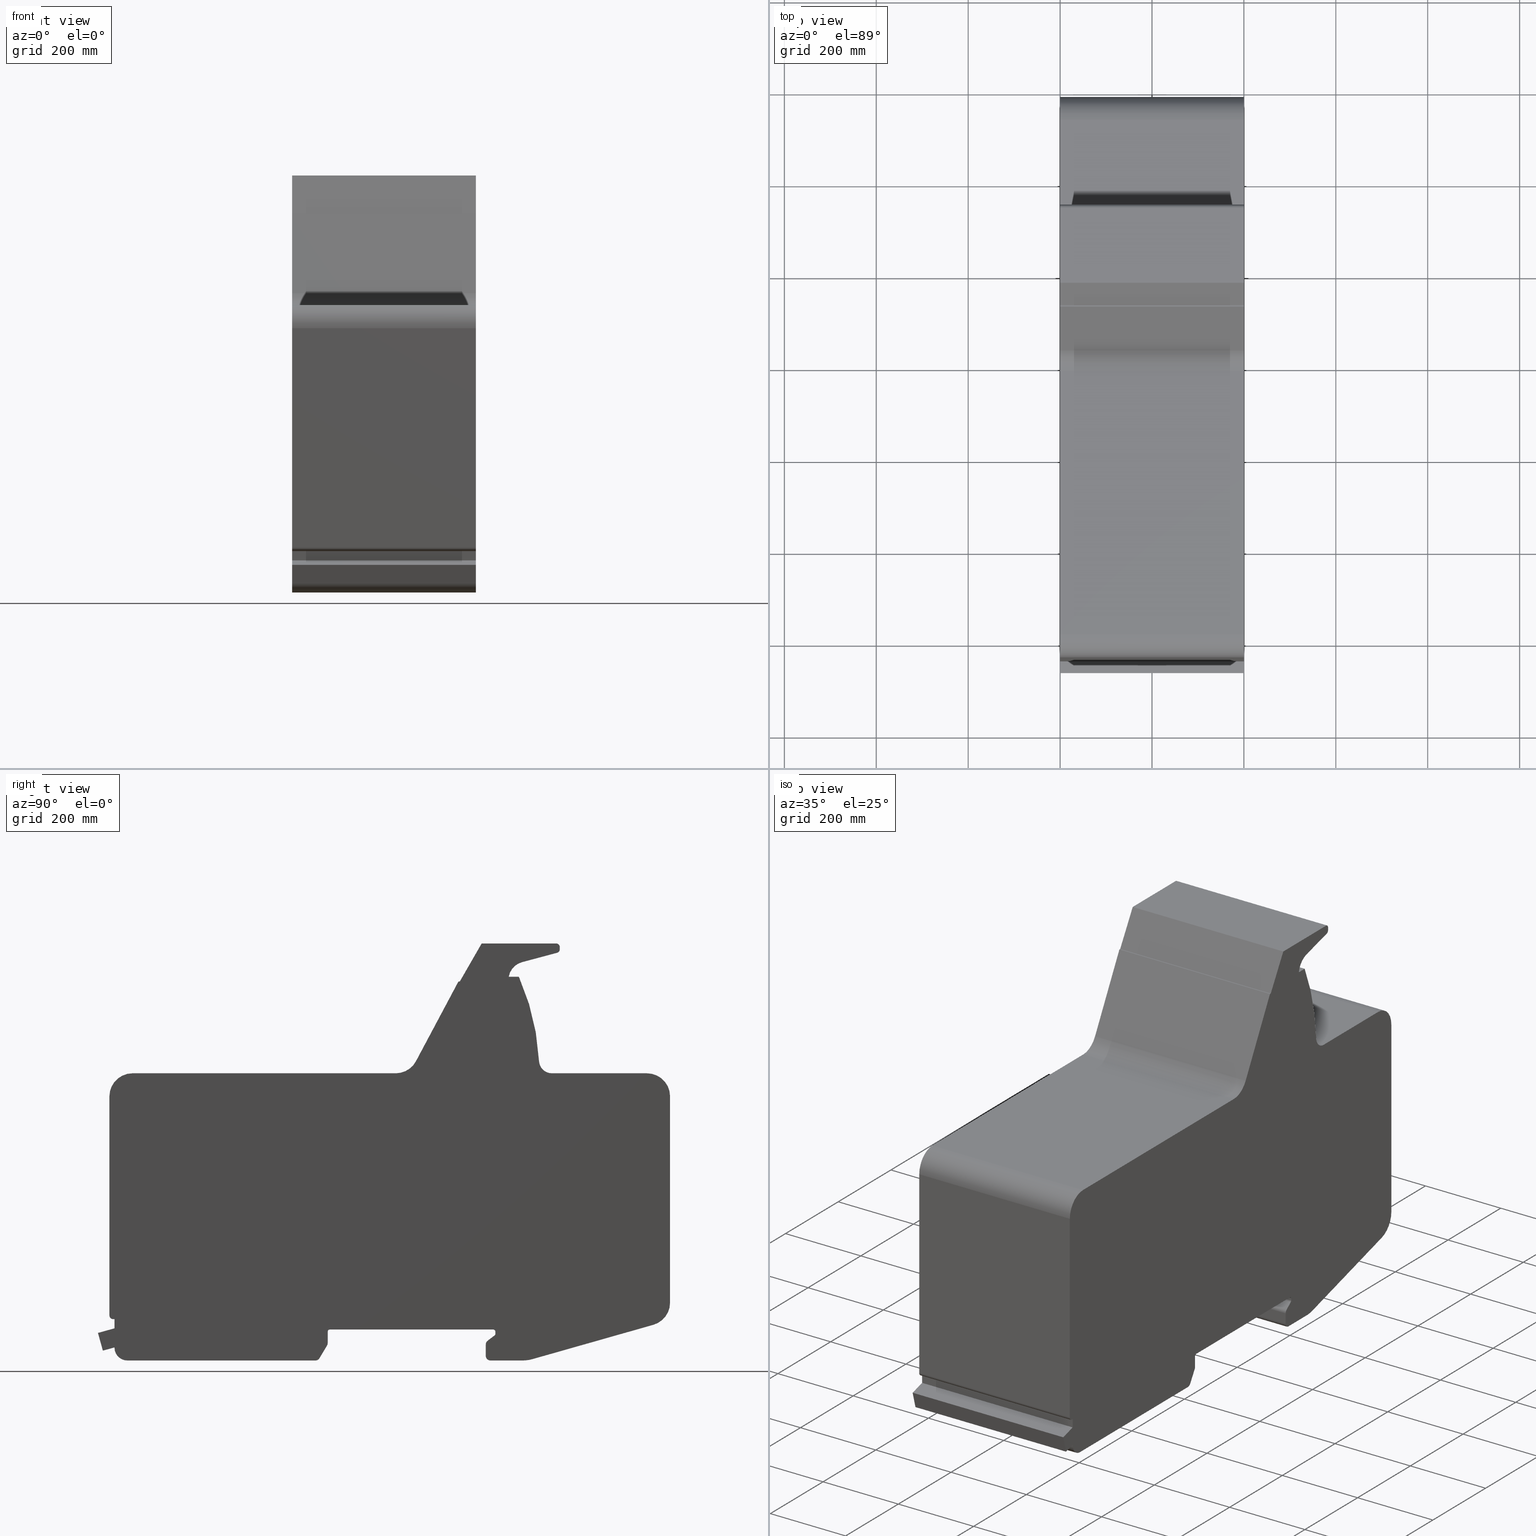
[diagram: canonical four-view strip — front | top / right | iso, engineering-drawing reading convention]
A machine part, canonical four-view strip (front | top / right | iso — engineering-drawing reading convention). The complete STEP part file that produces these views, byte-faithful:
ISO-10303-21;
HEADER;
/****************************************************************
 * Generated by software with PDElib inside                    *
 * PDElib Version v51a, created Wed 11/30/2011                  *
 * ITI Transcendata (http://www.transcendata.com/)              *
 ****************************************************************/
FILE_DESCRIPTION((' '),'2;1');
FILE_NAME('L:\\General\\For Claudia\\web change requests\\FHL8 AutoCAD Drawings\\FH8-1PJ60.stp','2012-09-05T09:10:06',(' '),(' '),' ','ACIS',' ');
FILE_SCHEMA(('CONFIG_CONTROL_DESIGN'));
ENDSEC;
DATA;
#5=APPLICATION_CONTEXT('configuration controlled 3D designs of mechanical parts and assemblies');
#6=APPLICATION_PROTOCOL_DEFINITION('International Standard','config_control_design',1995,#5);
#7=MECHANICAL_CONTEXT('None',#5,'mechanical');
#8=PRODUCT('L:\\General\\For Claudia\\web change requests\\FHL8 AutoCAD Drawings\\FH8-1PJ60.stp','L:\\General\\For Claudia\\web change requests\\FHL8 AutoCAD Drawings\\FH8-1PJ60.stp','None',(#7));
#9=PRODUCT_RELATED_PRODUCT_CATEGORY('detail',$,(#8));
#10=PRODUCT_CATEGORY('part',$);
#11=PRODUCT_CATEGORY_RELATIONSHIP('None','None',#10,#9);
#12=PERSON('PERSON1','None','None',$,$,$);
#13=ORGANIZATION('','None','None');
#14=PERSON_AND_ORGANIZATION(#12,#13);
#15=PERSON_AND_ORGANIZATION_ROLE('design_owner');
#16=CC_DESIGN_PERSON_AND_ORGANIZATION_ASSIGNMENT(#14,#15,(#8));
#17=PRODUCT_DEFINITION_FORMATION_WITH_SPECIFIED_SOURCE('None','None',#8,.NOT_KNOWN.);
#18=PERSON('PERSON2','None','None',$,$,$);
#19=ORGANIZATION('','None','None');
#20=PERSON_AND_ORGANIZATION(#18,#19);
#21=PERSON_AND_ORGANIZATION_ROLE('creator');
#22=CC_DESIGN_PERSON_AND_ORGANIZATION_ASSIGNMENT(#20,#21,(#17));
#23=PERSON('PERSON3','None','None',$,$,$);
#24=ORGANIZATION('','None','None');
#25=PERSON_AND_ORGANIZATION(#23,#24);
#26=PERSON_AND_ORGANIZATION_ROLE('part_supplier');
#27=CC_DESIGN_PERSON_AND_ORGANIZATION_ASSIGNMENT(#25,#26,(#17));
#28=APPROVAL_STATUS('approved');
#29=APPROVAL(#28,'None');
#30=PERSON('PERSON4','None','None',$,$,$);
#31=ORGANIZATION('','None','None');
#32=PERSON_AND_ORGANIZATION(#30,#31);
#33=APPROVAL_ROLE('None');
#34=APPROVAL_PERSON_ORGANIZATION(#32,#29,#33);
#35=CALENDAR_DATE(2012,5,9);
#36=COORDINATED_UNIVERSAL_TIME_OFFSET(0,0,.AHEAD.);
#37=LOCAL_TIME(9,10,6.0,#36);
#38=DATE_AND_TIME(#35,#37);
#39=APPROVAL_DATE_TIME(#38,#29);
#40=CC_DESIGN_APPROVAL(#29,(#17));
#41=SECURITY_CLASSIFICATION_LEVEL('unclassified');
#42=SECURITY_CLASSIFICATION('None','None',#41);
#43=CC_DESIGN_SECURITY_CLASSIFICATION(#42,(#17));
#44=APPROVAL_STATUS('approved');
#45=APPROVAL(#44,'None');
#46=PERSON('PERSON5','None','None',$,$,$);
#47=ORGANIZATION('','None','None');
#48=PERSON_AND_ORGANIZATION(#46,#47);
#49=APPROVAL_ROLE('None');
#50=APPROVAL_PERSON_ORGANIZATION(#48,#45,#49);
#51=CALENDAR_DATE(2012,5,9);
#52=COORDINATED_UNIVERSAL_TIME_OFFSET(0,0,.AHEAD.);
#53=LOCAL_TIME(9,10,6.0,#52);
#54=DATE_AND_TIME(#51,#53);
#55=APPROVAL_DATE_TIME(#54,#45);
#56=CC_DESIGN_APPROVAL(#45,(#42));
#57=PERSON('PERSON6','None','None',$,$,$);
#58=ORGANIZATION('','None','None');
#59=PERSON_AND_ORGANIZATION(#57,#58);
#60=PERSON_AND_ORGANIZATION_ROLE('classification_officer');
#61=CC_DESIGN_PERSON_AND_ORGANIZATION_ASSIGNMENT(#59,#60,(#42));
#62=DATE_TIME_ROLE('classification_date');
#63=CALENDAR_DATE(2012,5,9);
#64=COORDINATED_UNIVERSAL_TIME_OFFSET(0,0,.AHEAD.);
#65=LOCAL_TIME(9,10,6.0,#64);
#66=DATE_AND_TIME(#63,#65);
#67=CC_DESIGN_DATE_AND_TIME_ASSIGNMENT(#66,#62,(#42));
#68=DESIGN_CONTEXT('part definition',#5,'design');
#69=PRODUCT_DEFINITION('None','None',#17,#68);
#70=PERSON('PERSON7','None','None',$,$,$);
#71=ORGANIZATION('','None','None');
#72=PERSON_AND_ORGANIZATION(#70,#71);
#73=PERSON_AND_ORGANIZATION_ROLE('creator');
#74=CC_DESIGN_PERSON_AND_ORGANIZATION_ASSIGNMENT(#72,#73,(#69));
#75=DATE_TIME_ROLE('creation_date');
#76=CALENDAR_DATE(2012,5,9);
#77=COORDINATED_UNIVERSAL_TIME_OFFSET(0,0,.AHEAD.);
#78=LOCAL_TIME(9,10,6.0,#77);
#79=DATE_AND_TIME(#76,#78);
#80=CC_DESIGN_DATE_AND_TIME_ASSIGNMENT(#79,#75,(#69));
#81=APPROVAL_STATUS('approved');
#82=APPROVAL(#81,'None');
#83=PERSON('PERSON8','None','None',$,$,$);
#84=ORGANIZATION('','None','None');
#85=PERSON_AND_ORGANIZATION(#83,#84);
#86=APPROVAL_ROLE('None');
#87=APPROVAL_PERSON_ORGANIZATION(#85,#82,#86);
#88=CALENDAR_DATE(2012,5,9);
#89=COORDINATED_UNIVERSAL_TIME_OFFSET(0,0,.AHEAD.);
#90=LOCAL_TIME(9,10,6.0,#89);
#91=DATE_AND_TIME(#88,#90);
#92=APPROVAL_DATE_TIME(#91,#82);
#93=CC_DESIGN_APPROVAL(#82,(#69));
#99=(NAMED_UNIT(*)PLANE_ANGLE_UNIT()SI_UNIT($,.RADIAN.));
#100=DIMENSIONAL_EXPONENTS(0.0,0.0,0.0,0.0,0.0,0.0,0.0);
#101=PLANE_ANGLE_MEASURE_WITH_UNIT(PLANE_ANGLE_MEASURE(0.0174532925),#99);
#105=(CONVERSION_BASED_UNIT('DEGREE',#101)NAMED_UNIT(#100)PLANE_ANGLE_UNIT());
#109=(NAMED_UNIT(*)SI_UNIT($,.STERADIAN.)SOLID_ANGLE_UNIT());
#113=(LENGTH_UNIT()NAMED_UNIT(*)SI_UNIT(.MILLI.,.METRE.));
#115=UNCERTAINTY_MEASURE_WITH_UNIT(LENGTH_MEASURE(0.001),#113,'DISTANCE_ACCURACY_VALUE','');
#117=(GEOMETRIC_REPRESENTATION_CONTEXT(3)GLOBAL_UNCERTAINTY_ASSIGNED_CONTEXT((#115))GLOBAL_UNIT_ASSIGNED_CONTEXT((#105,#109,#113))REPRESENTATION_CONTEXT('None','None'));
#118=AXIS2_PLACEMENT_3D('',#119,#120,#121);
#119=CARTESIAN_POINT('',(0.0,0.0,0.0));
#120=DIRECTION('',(0.0,0.0,1.0));
#121=DIRECTION('',(1.0,0.0,0.0));
#122=SHAPE_REPRESENTATION('',(#118),#117);
#123=PRODUCT_DEFINITION_SHAPE('','',#69);
#124=SHAPE_DEFINITION_REPRESENTATION(#123,#122);
#130=(NAMED_UNIT(*)PLANE_ANGLE_UNIT()SI_UNIT($,.RADIAN.));
#131=DIMENSIONAL_EXPONENTS(0.0,0.0,0.0,0.0,0.0,0.0,0.0);
#132=PLANE_ANGLE_MEASURE_WITH_UNIT(PLANE_ANGLE_MEASURE(0.0174532925),#130);
#136=(CONVERSION_BASED_UNIT('DEGREE',#132)NAMED_UNIT(#131)PLANE_ANGLE_UNIT());
#140=(NAMED_UNIT(*)SI_UNIT($,.STERADIAN.)SOLID_ANGLE_UNIT());
#144=(LENGTH_UNIT()NAMED_UNIT(*)SI_UNIT(.CENTI.,.METRE.));
#146=UNCERTAINTY_MEASURE_WITH_UNIT(LENGTH_MEASURE(0.000001),#144,'DISTANCE_ACCURACY_VALUE','');
#148=(GEOMETRIC_REPRESENTATION_CONTEXT(3)GLOBAL_UNCERTAINTY_ASSIGNED_CONTEXT((#146))GLOBAL_UNIT_ASSIGNED_CONTEXT((#136,#140,#144))REPRESENTATION_CONTEXT('','3D'));
#149=CARTESIAN_POINT('',(0.0,-16.00000000000005,-57.499999999999822));
#150=DIRECTION('',(0.0,-1.0,0.0));
#151=DIRECTION('',(0.0,0.0,-1.0));
#152=AXIS2_PLACEMENT_3D('',#149,#150,#151);
#153=PLANE('',#152);
#154=CARTESIAN_POINT('',(400.0,-16.00000000000005,-57.499999999999822));
#155=VERTEX_POINT('',#154);
#156=CARTESIAN_POINT('',(400.0,-16.00000000000005,-32.452741697599755));
#157=VERTEX_POINT('',#156);
#158=CARTESIAN_POINT('',(400.0,-16.00000000000005,-57.499999999999822));
#159=DIRECTION('',(0.0,0.0,1.0));
#160=VECTOR('',#159,25.047258302400067);
#161=LINE('',#158,#160);
#162=EDGE_CURVE('',#155,#157,#161,.T.);
#163=ORIENTED_EDGE('',*,*,#162,.T.);
#164=CARTESIAN_POINT('',(0.0,-16.00000000000005,-32.452741697599755));
#165=VERTEX_POINT('',#164);
#166=CARTESIAN_POINT('',(0.0,-16.00000000000005,-32.452741697599755));
#167=DIRECTION('',(1.0,0.0,0.0));
#168=VECTOR('',#167,400.0);
#169=LINE('',#166,#168);
#170=EDGE_CURVE('',#165,#157,#169,.T.);
#171=ORIENTED_EDGE('',*,*,#170,.F.);
#172=CARTESIAN_POINT('',(0.0,-16.00000000000005,-57.499999999999822));
#173=VERTEX_POINT('',#172);
#174=CARTESIAN_POINT('',(0.0,-16.00000000000005,-32.452741697599755));
#175=DIRECTION('',(0.0,0.0,-1.0));
#176=VECTOR('',#175,25.047258302400067);
#177=LINE('',#174,#176);
#178=EDGE_CURVE('',#165,#173,#177,.T.);
#179=ORIENTED_EDGE('',*,*,#178,.T.);
#180=CARTESIAN_POINT('',(0.0,-16.00000000000005,-57.499999999999822));
#181=DIRECTION('',(1.0,0.0,0.0));
#182=VECTOR('',#181,400.0);
#183=LINE('',#180,#182);
#184=EDGE_CURVE('',#173,#155,#183,.T.);
#185=ORIENTED_EDGE('',*,*,#184,.T.);
#186=EDGE_LOOP('',(#163,#171,#179,#185));
#187=FACE_OUTER_BOUND('',#186,.T.);
#188=ADVANCED_FACE('',(#187),#153,.T.);
#189=CARTESIAN_POINT('',(0.0,-5.999999999982961,-32.452741697565266));
#190=DIRECTION('',(1.0,0.0,0.0));
#191=DIRECTION('',(0.0,-0.896114729056824,0.443822478438637));
#192=AXIS2_PLACEMENT_3D('',#189,#190,#191);
#193=CYLINDRICAL_SURFACE('',#192,10.000000000017117);
#194=CARTESIAN_POINT('',(400.0,-12.06043215261758,-24.498424497223393));
#195=VERTEX_POINT('',#194);
#196=CARTESIAN_POINT('',(400.0,-5.999999999982961,-32.452741697565266));
#197=DIRECTION('',(-1.0,0.0,0.0));
#198=DIRECTION('',(0.0,-0.896114729056824,0.443822478438637));
#199=AXIS2_PLACEMENT_3D('',#196,#197,#198);
#200=CIRCLE('',#199,10.000000000017115);
#201=EDGE_CURVE('',#157,#195,#200,.T.);
#202=ORIENTED_EDGE('',*,*,#201,.T.);
#203=CARTESIAN_POINT('',(0.0,-12.06043215261758,-24.498424497223393));
#204=VERTEX_POINT('',#203);
#205=CARTESIAN_POINT('',(0.0,-12.06043215261758,-24.498424497223393));
#206=DIRECTION('',(1.0,0.0,0.0));
#207=VECTOR('',#206,400.0);
#208=LINE('',#205,#207);
#209=EDGE_CURVE('',#204,#195,#208,.T.);
#210=ORIENTED_EDGE('',*,*,#209,.F.);
#211=CARTESIAN_POINT('',(0.0,-5.999999999982961,-32.452741697565266));
#212=DIRECTION('',(1.0,0.0,0.0));
#213=DIRECTION('',(0.0,-0.896114729056824,0.443822478438637));
#214=AXIS2_PLACEMENT_3D('',#211,#212,#213);
#215=CIRCLE('',#214,10.000000000017115);
#216=EDGE_CURVE('',#204,#165,#215,.T.);
#217=ORIENTED_EDGE('',*,*,#216,.T.);
#218=ORIENTED_EDGE('',*,*,#170,.T.);
#219=EDGE_LOOP('',(#202,#210,#217,#218));
#220=FACE_OUTER_BOUND('',#219,.T.);
#221=ADVANCED_FACE('',(#220),#193,.T.);
#222=CARTESIAN_POINT('',(0.0,-12.06043215261758,-24.498424497223393));
#223=DIRECTION('',(0.0,-0.606043215263135,0.795431720032286));
#224=DIRECTION('',(1.0,0.0,0.0));
#225=AXIS2_PLACEMENT_3D('',#222,#223,#224);
#226=PLANE('',#225);
#227=CARTESIAN_POINT('',(400.0,3.030216076311909,-13.000787751363983));
#228=VERTEX_POINT('',#227);
#229=CARTESIAN_POINT('',(400.0,-12.06043215261758,-24.498424497223393));
#230=DIRECTION('',(0.0,0.795431720032286,0.606043215263135));
#231=VECTOR('',#230,18.971645018527763);
#232=LINE('',#229,#231);
#233=EDGE_CURVE('',#195,#228,#232,.T.);
#234=ORIENTED_EDGE('',*,*,#233,.T.);
#235=CARTESIAN_POINT('',(0.0,3.030216076311909,-13.000787751363983));
#236=VERTEX_POINT('',#235);
#237=CARTESIAN_POINT('',(0.0,3.030216076311909,-13.000787751363983));
#238=DIRECTION('',(1.0,0.0,0.0));
#239=VECTOR('',#238,400.0);
#240=LINE('',#237,#239);
#241=EDGE_CURVE('',#236,#228,#240,.T.);
#242=ORIENTED_EDGE('',*,*,#241,.F.);
#243=CARTESIAN_POINT('',(0.0,3.030216076311909,-13.000787751363983));
#244=DIRECTION('',(0.0,-0.795431720032286,-0.606043215263135));
#245=VECTOR('',#244,18.971645018527763);
#246=LINE('',#243,#245);
#247=EDGE_CURVE('',#236,#204,#246,.T.);
#248=ORIENTED_EDGE('',*,*,#247,.T.);
#249=ORIENTED_EDGE('',*,*,#209,.T.);
#250=EDGE_LOOP('',(#234,#242,#248,#249));
#251=FACE_OUTER_BOUND('',#250,.T.);
#252=ADVANCED_FACE('',(#251),#226,.T.);
#253=CARTESIAN_POINT('',(0.0,1.421085E-013,-9.023629151199742));
#254=DIRECTION('',(1.0,0.0,0.0));
#255=DIRECTION('',(0.0,0.896114729056035,-0.443822478440232));
#256=AXIS2_PLACEMENT_3D('',#253,#254,#255);
#257=CYLINDRICAL_SURFACE('',#256,4.99999999999987);
#258=CARTESIAN_POINT('',(400.0,5.0,-9.023629151199941));
#259=VERTEX_POINT('',#258);
#260=CARTESIAN_POINT('',(400.0,1.421085E-013,-9.023629151199742));
#261=DIRECTION('',(1.0,0.0,0.0));
#262=DIRECTION('',(0.0,0.896114729056035,-0.443822478440232));
#263=AXIS2_PLACEMENT_3D('',#260,#261,#262);
#264=CIRCLE('',#263,4.99999999999987);
#265=EDGE_CURVE('',#228,#259,#264,.T.);
#266=ORIENTED_EDGE('',*,*,#265,.T.);
#267=CARTESIAN_POINT('',(0.0,5.0,-9.023629151199941));
#268=VERTEX_POINT('',#267);
#269=CARTESIAN_POINT('',(0.0,5.0,-9.023629151199941));
#270=DIRECTION('',(1.0,0.0,0.0));
#271=VECTOR('',#270,400.0);
#272=LINE('',#269,#271);
#273=EDGE_CURVE('',#268,#259,#272,.T.);
#274=ORIENTED_EDGE('',*,*,#273,.F.);
#275=CARTESIAN_POINT('',(0.0,1.421085E-013,-9.023629151199742));
#276=DIRECTION('',(-1.0,0.0,0.0));
#277=DIRECTION('',(0.0,0.896114729056035,-0.443822478440232));
#278=AXIS2_PLACEMENT_3D('',#275,#276,#277);
#279=CIRCLE('',#278,4.99999999999987);
#280=EDGE_CURVE('',#268,#236,#279,.T.);
#281=ORIENTED_EDGE('',*,*,#280,.T.);
#282=ORIENTED_EDGE('',*,*,#241,.T.);
#283=EDGE_LOOP('',(#266,#274,#281,#282));
#284=FACE_OUTER_BOUND('',#283,.T.);
#285=ADVANCED_FACE('',(#284),#257,.F.);
#286=CARTESIAN_POINT('',(0.0,5.0,-9.023629151199941));
#287=DIRECTION('',(0.0,-1.0,0.0));
#288=DIRECTION('',(0.0,0.0,-1.0));
#289=AXIS2_PLACEMENT_3D('',#286,#287,#288);
#290=PLANE('',#289);
#291=CARTESIAN_POINT('',(400.0,4.999999999999893,-4.999999999999814));
#292=VERTEX_POINT('',#291);
#293=CARTESIAN_POINT('',(400.0,5.0,-9.023629151199941));
#294=DIRECTION('',(0.0,0.0,1.0));
#295=VECTOR('',#294,4.023629151200128);
#296=LINE('',#293,#295);
#297=EDGE_CURVE('',#259,#292,#296,.T.);
#298=ORIENTED_EDGE('',*,*,#297,.T.);
#299=CARTESIAN_POINT('',(0.0,4.999999999999893,-4.999999999999814));
#300=VERTEX_POINT('',#299);
#301=CARTESIAN_POINT('',(0.0,4.999999999999893,-4.999999999999814));
#302=DIRECTION('',(1.0,0.0,0.0));
#303=VECTOR('',#302,400.0);
#304=LINE('',#301,#303);
#305=EDGE_CURVE('',#300,#292,#304,.T.);
#306=ORIENTED_EDGE('',*,*,#305,.F.);
#307=CARTESIAN_POINT('',(0.0,4.999999999999893,-4.999999999999814));
#308=DIRECTION('',(0.0,0.0,-1.0));
#309=VECTOR('',#308,4.023629151200128);
#310=LINE('',#307,#309);
#311=EDGE_CURVE('',#300,#268,#310,.T.);
#312=ORIENTED_EDGE('',*,*,#311,.T.);
#313=ORIENTED_EDGE('',*,*,#273,.T.);
#314=EDGE_LOOP('',(#298,#306,#312,#313));
#315=FACE_OUTER_BOUND('',#314,.T.);
#316=ADVANCED_FACE('',(#315),#290,.T.);
#317=CARTESIAN_POINT('',(0.0,3.552714E-014,-4.999999999999845));
#318=DIRECTION('',(1.0,0.0,0.0));
#319=DIRECTION('',(0.0,0.707106781186542,0.707106781186553));
#320=AXIS2_PLACEMENT_3D('',#317,#318,#319);
#321=CYLINDRICAL_SURFACE('',#320,4.999999999999845);
#322=CARTESIAN_POINT('',(400.0,0.0,0.0));
#323=VERTEX_POINT('',#322);
#324=CARTESIAN_POINT('',(400.0,3.552714E-014,-4.999999999999845));
#325=DIRECTION('',(1.0,0.0,0.0));
#326=DIRECTION('',(0.0,0.707106781186542,0.707106781186553));
#327=AXIS2_PLACEMENT_3D('',#324,#325,#326);
#328=CIRCLE('',#327,4.999999999999845);
#329=EDGE_CURVE('',#292,#323,#328,.T.);
#330=ORIENTED_EDGE('',*,*,#329,.T.);
#331=CARTESIAN_POINT('',(0.0,0.0,0.0));
#332=VERTEX_POINT('',#331);
#333=CARTESIAN_POINT('',(0.0,0.0,0.0));
#334=DIRECTION('',(1.0,0.0,0.0));
#335=VECTOR('',#334,400.0);
#336=LINE('',#333,#335);
#337=EDGE_CURVE('',#332,#323,#336,.T.);
#338=ORIENTED_EDGE('',*,*,#337,.F.);
#339=CARTESIAN_POINT('',(0.0,3.552714E-014,-4.999999999999845));
#340=DIRECTION('',(-1.0,0.0,0.0));
#341=DIRECTION('',(0.0,0.707106781186542,0.707106781186553));
#342=AXIS2_PLACEMENT_3D('',#339,#340,#341);
#343=CIRCLE('',#342,4.999999999999845);
#344=EDGE_CURVE('',#332,#300,#343,.T.);
#345=ORIENTED_EDGE('',*,*,#344,.T.);
#346=ORIENTED_EDGE('',*,*,#305,.T.);
#347=EDGE_LOOP('',(#330,#338,#345,#346));
#348=FACE_OUTER_BOUND('',#347,.T.);
#349=ADVANCED_FACE('',(#348),#321,.F.);
#350=CARTESIAN_POINT('',(0.0,0.0,0.0));
#351=DIRECTION('',(0.0,0.0,-1.0));
#352=DIRECTION('',(-1.0,0.0,0.0));
#353=AXIS2_PLACEMENT_3D('',#350,#351,#352);
#354=PLANE('',#353);
#355=CARTESIAN_POINT('',(400.0,-355.00000000000006,1.909584E-013));
#356=VERTEX_POINT('',#355);
#357=CARTESIAN_POINT('',(400.0,0.0,2.524355E-029));
#358=DIRECTION('',(0.0,-1.0,0.0));
#359=VECTOR('',#358,355.00000000000006);
#360=LINE('',#357,#359);
#361=EDGE_CURVE('',#323,#356,#360,.T.);
#362=ORIENTED_EDGE('',*,*,#361,.T.);
#363=CARTESIAN_POINT('',(0.0,-355.00000000000006,1.909584E-013));
#364=VERTEX_POINT('',#363);
#365=CARTESIAN_POINT('',(0.0,-355.00000000000006,1.909584E-013));
#366=DIRECTION('',(1.0,0.0,0.0));
#367=VECTOR('',#366,400.0);
#368=LINE('',#365,#367);
#369=EDGE_CURVE('',#364,#356,#368,.T.);
#370=ORIENTED_EDGE('',*,*,#369,.F.);
#371=CARTESIAN_POINT('',(0.0,-355.00000000000006,1.909584E-013));
#372=DIRECTION('',(0.0,1.0,0.0));
#373=VECTOR('',#372,355.00000000000006);
#374=LINE('',#371,#373);
#375=EDGE_CURVE('',#364,#332,#374,.T.);
#376=ORIENTED_EDGE('',*,*,#375,.T.);
#377=ORIENTED_EDGE('',*,*,#337,.T.);
#378=EDGE_LOOP('',(#362,#370,#376,#377));
#379=FACE_OUTER_BOUND('',#378,.T.);
#380=ADVANCED_FACE('',(#379),#354,.T.);
#381=CARTESIAN_POINT('',(0.0,-354.99999999999994,-4.999999999999845));
#382=DIRECTION('',(1.0,0.0,0.0));
#383=DIRECTION('',(0.0,-0.707106781186566,0.707106781186529));
#384=AXIS2_PLACEMENT_3D('',#381,#382,#383);
#385=CYLINDRICAL_SURFACE('',#384,5.000000000000034);
#386=CARTESIAN_POINT('',(400.0,-360.0,-5.0));
#387=VERTEX_POINT('',#386);
#388=CARTESIAN_POINT('',(400.0,-354.99999999999994,-4.999999999999845));
#389=DIRECTION('',(1.0,0.0,0.0));
#390=DIRECTION('',(0.0,-0.707106781186566,0.707106781186529));
#391=AXIS2_PLACEMENT_3D('',#388,#389,#390);
#392=CIRCLE('',#391,5.000000000000034);
#393=EDGE_CURVE('',#356,#387,#392,.T.);
#394=ORIENTED_EDGE('',*,*,#393,.T.);
#395=CARTESIAN_POINT('',(0.0,-360.0,-5.0));
#396=VERTEX_POINT('',#395);
#397=CARTESIAN_POINT('',(0.0,-360.0,-5.0));
#398=DIRECTION('',(1.0,0.0,0.0));
#399=VECTOR('',#398,400.0);
#400=LINE('',#397,#399);
#401=EDGE_CURVE('',#396,#387,#400,.T.);
#402=ORIENTED_EDGE('',*,*,#401,.F.);
#403=CARTESIAN_POINT('',(0.0,-354.99999999999994,-4.999999999999845));
#404=DIRECTION('',(-1.0,0.0,0.0));
#405=DIRECTION('',(0.0,-0.707106781186566,0.707106781186529));
#406=AXIS2_PLACEMENT_3D('',#403,#404,#405);
#407=CIRCLE('',#406,5.000000000000034);
#408=EDGE_CURVE('',#396,#364,#407,.T.);
#409=ORIENTED_EDGE('',*,*,#408,.T.);
#410=ORIENTED_EDGE('',*,*,#369,.T.);
#411=EDGE_LOOP('',(#394,#402,#409,#410));
#412=FACE_OUTER_BOUND('',#411,.T.);
#413=ADVANCED_FACE('',(#412),#385,.F.);
#414=CARTESIAN_POINT('',(0.0,-360.0,-5.0));
#415=DIRECTION('',(0.0,1.0,0.0));
#416=DIRECTION('',(0.0,0.0,1.0));
#417=AXIS2_PLACEMENT_3D('',#414,#415,#416);
#418=PLANE('',#417);
#419=CARTESIAN_POINT('',(400.0,-360.00000000000006,-29.730160350499609));
#420=VERTEX_POINT('',#419);
#421=CARTESIAN_POINT('',(400.0,-360.0,-5.0));
#422=DIRECTION('',(0.0,0.0,-1.0));
#423=VECTOR('',#422,24.730160350499609);
#424=LINE('',#421,#423);
#425=EDGE_CURVE('',#387,#420,#424,.T.);
#426=ORIENTED_EDGE('',*,*,#425,.T.);
#427=CARTESIAN_POINT('',(0.0,-360.00000000000006,-29.730160350499609));
#428=VERTEX_POINT('',#427);
#429=CARTESIAN_POINT('',(0.0,-360.00000000000006,-29.730160350499609));
#430=DIRECTION('',(1.0,0.0,0.0));
#431=VECTOR('',#430,400.0);
#432=LINE('',#429,#431);
#433=EDGE_CURVE('',#428,#420,#432,.T.);
#434=ORIENTED_EDGE('',*,*,#433,.F.);
#435=CARTESIAN_POINT('',(0.0,-360.00000000000006,-29.730160350499609));
#436=DIRECTION('',(0.0,0.0,1.0));
#437=VECTOR('',#436,24.730160350499609);
#438=LINE('',#435,#437);
#439=EDGE_CURVE('',#428,#396,#438,.T.);
#440=ORIENTED_EDGE('',*,*,#439,.T.);
#441=ORIENTED_EDGE('',*,*,#401,.T.);
#442=EDGE_LOOP('',(#426,#434,#440,#441));
#443=FACE_OUTER_BOUND('',#442,.T.);
#444=ADVANCED_FACE('',(#443),#418,.T.);
#445=CARTESIAN_POINT('',(0.0,-370.00000000000011,-29.730160350499265));
#446=DIRECTION('',(1.0,0.0,0.0));
#447=DIRECTION('',(0.0,0.96371492821052,-0.266933581896681));
#448=AXIS2_PLACEMENT_3D('',#445,#446,#447);
#449=CYLINDRICAL_SURFACE('',#448,10.00000000000011);
#450=CARTESIAN_POINT('',(400.0,-361.42507074288375,-34.875117904789754));
#451=VERTEX_POINT('',#450);
#452=CARTESIAN_POINT('',(400.0,-370.00000000000011,-29.730160350499265));
#453=DIRECTION('',(-1.0,0.0,0.0));
#454=DIRECTION('',(0.0,0.96371492821052,-0.266933581896681));
#455=AXIS2_PLACEMENT_3D('',#452,#453,#454);
#456=CIRCLE('',#455,10.000000000000108);
#457=EDGE_CURVE('',#420,#451,#456,.T.);
#458=ORIENTED_EDGE('',*,*,#457,.T.);
#459=CARTESIAN_POINT('',(0.0,-361.42507074288375,-34.875117904789754));
#460=VERTEX_POINT('',#459);
#461=CARTESIAN_POINT('',(0.0,-361.42507074288375,-34.875117904789754));
#462=DIRECTION('',(1.0,0.0,0.0));
#463=VECTOR('',#462,400.0);
#464=LINE('',#461,#463);
#465=EDGE_CURVE('',#460,#451,#464,.T.);
#466=ORIENTED_EDGE('',*,*,#465,.F.);
#467=CARTESIAN_POINT('',(0.0,-370.00000000000011,-29.730160350499265));
#468=DIRECTION('',(1.0,0.0,0.0));
#469=DIRECTION('',(0.0,0.96371492821052,-0.266933581896681));
#470=AXIS2_PLACEMENT_3D('',#467,#468,#469);
#471=CIRCLE('',#470,10.000000000000108);
#472=EDGE_CURVE('',#460,#428,#471,.T.);
#473=ORIENTED_EDGE('',*,*,#472,.T.);
#474=ORIENTED_EDGE('',*,*,#433,.T.);
#475=EDGE_LOOP('',(#458,#466,#473,#474));
#476=FACE_OUTER_BOUND('',#475,.T.);
#477=ADVANCED_FACE('',(#476),#449,.T.);
#478=CARTESIAN_POINT('',(0.0,-361.42507074288375,-34.875117904789754));
#479=DIRECTION('',(0.0,0.85749292571255,-0.514495755427517));
#480=DIRECTION('',(-1.0,0.0,0.0));
#481=AXIS2_PLACEMENT_3D('',#478,#479,#480);
#482=PLANE('',#481);
#483=CARTESIAN_POINT('',(400.0,-378.08697453258333,-62.644957554289782));
#484=VERTEX_POINT('',#483);
#485=CARTESIAN_POINT('',(400.0,-361.42507074288375,-34.875117904789754));
#486=DIRECTION('',(0.0,-0.514495755427517,-0.85749292571255));
#487=VECTOR('',#486,32.384919824760246);
#488=LINE('',#485,#487);
#489=EDGE_CURVE('',#451,#484,#488,.T.);
#490=ORIENTED_EDGE('',*,*,#489,.T.);
#491=CARTESIAN_POINT('',(0.0,-378.08697453258333,-62.644957554289782));
#492=VERTEX_POINT('',#491);
#493=CARTESIAN_POINT('',(0.0,-378.08697453258333,-62.644957554289782));
#494=DIRECTION('',(1.0,0.0,0.0));
#495=VECTOR('',#494,400.0);
#496=LINE('',#493,#495);
#497=EDGE_CURVE('',#492,#484,#496,.T.);
#498=ORIENTED_EDGE('',*,*,#497,.F.);
#499=CARTESIAN_POINT('',(0.0,-378.08697453258333,-62.644957554289782));
#500=DIRECTION('',(0.0,0.514495755427517,0.85749292571255));
#501=VECTOR('',#500,32.384919824760246);
#502=LINE('',#499,#501);
#503=EDGE_CURVE('',#492,#460,#502,.T.);
#504=ORIENTED_EDGE('',*,*,#503,.T.);
#505=ORIENTED_EDGE('',*,*,#465,.T.);
#506=EDGE_LOOP('',(#490,#498,#504,#505));
#507=FACE_OUTER_BOUND('',#506,.T.);
#508=ADVANCED_FACE('',(#507),#482,.T.);
#509=CARTESIAN_POINT('',(0.0,-386.66190378969998,-57.500000000000014));
#510=DIRECTION('',(1.0,0.0,0.0));
#511=DIRECTION('',(0.0,0.492698814982865,-0.870199906753891));
#512=AXIS2_PLACEMENT_3D('',#509,#510,#511);
#513=CYLINDRICAL_SURFACE('',#512,9.999999999999977);
#514=CARTESIAN_POINT('',(400.0,-386.66190378969986,-67.5));
#515=VERTEX_POINT('',#514);
#516=CARTESIAN_POINT('',(400.0,-386.66190378969998,-57.500000000000014));
#517=DIRECTION('',(-1.0,0.0,0.0));
#518=DIRECTION('',(0.0,0.492698814982865,-0.870199906753891));
#519=AXIS2_PLACEMENT_3D('',#516,#517,#518);
#520=CIRCLE('',#519,9.999999999999977);
#521=EDGE_CURVE('',#484,#515,#520,.T.);
#522=ORIENTED_EDGE('',*,*,#521,.T.);
#523=CARTESIAN_POINT('',(0.0,-386.66190378969986,-67.5));
#524=VERTEX_POINT('',#523);
#525=CARTESIAN_POINT('',(0.0,-386.66190378969986,-67.5));
#526=DIRECTION('',(1.0,0.0,0.0));
#527=VECTOR('',#526,400.0);
#528=LINE('',#525,#527);
#529=EDGE_CURVE('',#524,#515,#528,.T.);
#530=ORIENTED_EDGE('',*,*,#529,.F.);
#531=CARTESIAN_POINT('',(0.0,-386.66190378969998,-57.500000000000014));
#532=DIRECTION('',(1.0,0.0,0.0));
#533=DIRECTION('',(0.0,0.492698814982865,-0.870199906753891));
#534=AXIS2_PLACEMENT_3D('',#531,#532,#533);
#535=CIRCLE('',#534,9.999999999999977);
#536=EDGE_CURVE('',#524,#492,#535,.T.);
#537=ORIENTED_EDGE('',*,*,#536,.T.);
#538=ORIENTED_EDGE('',*,*,#497,.T.);
#539=EDGE_LOOP('',(#522,#530,#537,#538));
#540=FACE_OUTER_BOUND('',#539,.T.);
#541=ADVANCED_FACE('',(#540),#513,.T.);
#542=CARTESIAN_POINT('',(0.0,-386.66190378969986,-67.5));
#543=DIRECTION('',(0.0,0.0,-1.0));
#544=DIRECTION('',(-1.0,0.0,0.0));
#545=AXIS2_PLACEMENT_3D('',#542,#543,#544);
#546=PLANE('',#545);
#547=CARTESIAN_POINT('',(400.0,-796.00000000000023,-67.499999999999829));
#548=VERTEX_POINT('',#547);
#549=CARTESIAN_POINT('',(400.0,-386.66190378969986,-67.5));
#550=DIRECTION('',(0.0,-1.0,0.0));
#551=VECTOR('',#550,409.33809621030036);
#552=LINE('',#549,#551);
#553=EDGE_CURVE('',#515,#548,#552,.T.);
#554=ORIENTED_EDGE('',*,*,#553,.T.);
#555=CARTESIAN_POINT('',(0.0,-796.00000000000023,-67.499999999999829));
#556=VERTEX_POINT('',#555);
#557=CARTESIAN_POINT('',(0.0,-796.00000000000023,-67.499999999999829));
#558=DIRECTION('',(1.0,0.0,0.0));
#559=VECTOR('',#558,400.0);
#560=LINE('',#557,#559);
#561=EDGE_CURVE('',#556,#548,#560,.T.);
#562=ORIENTED_EDGE('',*,*,#561,.F.);
#563=CARTESIAN_POINT('',(0.0,-796.00000000000023,-67.499999999999829));
#564=DIRECTION('',(0.0,1.0,0.0));
#565=VECTOR('',#564,409.33809621030036);
#566=LINE('',#563,#565);
#567=EDGE_CURVE('',#556,#524,#566,.T.);
#568=ORIENTED_EDGE('',*,*,#567,.T.);
#569=ORIENTED_EDGE('',*,*,#529,.T.);
#570=EDGE_LOOP('',(#554,#562,#568,#569));
#571=FACE_OUTER_BOUND('',#570,.T.);
#572=ADVANCED_FACE('',(#571),#546,.T.);
#573=CARTESIAN_POINT('',(0.0,-796.00000000000011,-39.500000000000199));
#574=DIRECTION('',(1.0,0.0,0.0));
#575=DIRECTION('',(0.0,-0.707106781186551,-0.707106781186544));
#576=AXIS2_PLACEMENT_3D('',#573,#574,#575);
#577=CYLINDRICAL_SURFACE('',#576,27.999999999999623);
#578=CARTESIAN_POINT('',(400.0,-823.99999999999977,-39.500000000000021));
#579=VERTEX_POINT('',#578);
#580=CARTESIAN_POINT('',(400.0,-796.00000000000011,-39.500000000000199));
#581=DIRECTION('',(-1.0,0.0,0.0));
#582=DIRECTION('',(0.0,-0.707106781186551,-0.707106781186544));
#583=AXIS2_PLACEMENT_3D('',#580,#581,#582);
#584=CIRCLE('',#583,27.999999999999623);
#585=EDGE_CURVE('',#548,#579,#584,.T.);
#586=ORIENTED_EDGE('',*,*,#585,.T.);
#587=CARTESIAN_POINT('',(0.0,-823.99999999999977,-39.500000000000021));
#588=VERTEX_POINT('',#587);
#589=CARTESIAN_POINT('',(0.0,-823.99999999999977,-39.500000000000021));
#590=DIRECTION('',(1.0,0.0,0.0));
#591=VECTOR('',#590,400.0);
#592=LINE('',#589,#591);
#593=EDGE_CURVE('',#588,#579,#592,.T.);
#594=ORIENTED_EDGE('',*,*,#593,.F.);
#595=CARTESIAN_POINT('',(0.0,-796.00000000000011,-39.500000000000199));
#596=DIRECTION('',(1.0,0.0,0.0));
#597=DIRECTION('',(0.0,-0.707106781186551,-0.707106781186544));
#598=AXIS2_PLACEMENT_3D('',#595,#596,#597);
#599=CIRCLE('',#598,27.999999999999623);
#600=EDGE_CURVE('',#588,#556,#599,.T.);
#601=ORIENTED_EDGE('',*,*,#600,.T.);
#602=ORIENTED_EDGE('',*,*,#561,.T.);
#603=EDGE_LOOP('',(#586,#594,#601,#602));
#604=FACE_OUTER_BOUND('',#603,.T.);
#605=ADVANCED_FACE('',(#604),#577,.T.);
#606=CARTESIAN_POINT('',(0.0,-823.99999999999977,-39.500000000000021));
#607=DIRECTION('',(0.0,-1.0,0.0));
#608=DIRECTION('',(0.0,0.0,-1.0));
#609=AXIS2_PLACEMENT_3D('',#606,#607,#608);
#610=PLANE('',#609);
#611=CARTESIAN_POINT('',(400.0,-823.99999999999977,-39.014537093900017));
#612=VERTEX_POINT('',#611);
#613=CARTESIAN_POINT('',(400.0,-823.99999999999977,-39.500000000000028));
#614=DIRECTION('',(0.0,0.0,1.0));
#615=VECTOR('',#614,0.485462906100011);
#616=LINE('',#613,#615);
#617=EDGE_CURVE('',#579,#612,#616,.T.);
#618=ORIENTED_EDGE('',*,*,#617,.T.);
#619=CARTESIAN_POINT('',(0.0,-823.99999999999977,-39.014537093900017));
#620=VERTEX_POINT('',#619);
#621=CARTESIAN_POINT('',(0.0,-823.99999999999977,-39.014537093900017));
#622=DIRECTION('',(1.0,0.0,0.0));
#623=VECTOR('',#622,400.0);
#624=LINE('',#621,#623);
#625=EDGE_CURVE('',#620,#612,#624,.T.);
#626=ORIENTED_EDGE('',*,*,#625,.F.);
#627=CARTESIAN_POINT('',(0.0,-823.99999999999977,-39.014537093900017));
#628=DIRECTION('',(0.0,0.0,-1.0));
#629=VECTOR('',#628,0.485462906100011);
#630=LINE('',#627,#629);
#631=EDGE_CURVE('',#620,#588,#630,.T.);
#632=ORIENTED_EDGE('',*,*,#631,.T.);
#633=ORIENTED_EDGE('',*,*,#593,.T.);
#634=EDGE_LOOP('',(#618,#626,#632,#633));
#635=FACE_OUTER_BOUND('',#634,.T.);
#636=ADVANCED_FACE('',(#635),#610,.T.);
#637=CARTESIAN_POINT('',(0.0,-823.99999999999977,-39.014537093900017));
#638=DIRECTION('',(0.0,0.267643863784525,-0.963517909630377));
#639=DIRECTION('',(-1.0,0.0,0.0));
#640=AXIS2_PLACEMENT_3D('',#637,#638,#639);
#641=PLANE('',#640);
#642=CARTESIAN_POINT('',(400.0,-849.29424544898893,-46.040716385241502));
#643=VERTEX_POINT('',#642);
#644=CARTESIAN_POINT('',(400.0,-823.99999999999977,-39.014537093900017));
#645=DIRECTION('',(0.0,-0.963517909630377,-0.267643863784525));
#646=VECTOR('',#645,26.251972273865153);
#647=LINE('',#644,#646);
#648=EDGE_CURVE('',#612,#643,#647,.T.);
#649=ORIENTED_EDGE('',*,*,#648,.T.);
#650=CARTESIAN_POINT('',(0.0,-849.29424544898893,-46.040716385241502));
#651=VERTEX_POINT('',#650);
#652=CARTESIAN_POINT('',(0.0,-849.29424544898893,-46.040716385241502));
#653=DIRECTION('',(1.0,0.0,0.0));
#654=VECTOR('',#653,400.0);
#655=LINE('',#652,#654);
#656=EDGE_CURVE('',#651,#643,#655,.T.);
#657=ORIENTED_EDGE('',*,*,#656,.F.);
#658=CARTESIAN_POINT('',(0.0,-849.29424544898893,-46.040716385241502));
#659=DIRECTION('',(0.0,0.963517909630377,0.267643863784525));
#660=VECTOR('',#659,26.251972273865153);
#661=LINE('',#658,#660);
#662=EDGE_CURVE('',#651,#620,#661,.T.);
#663=ORIENTED_EDGE('',*,*,#662,.T.);
#664=ORIENTED_EDGE('',*,*,#625,.T.);
#665=EDGE_LOOP('',(#649,#657,#663,#664));
#666=FACE_OUTER_BOUND('',#665,.T.);
#667=ADVANCED_FACE('',(#666),#641,.T.);
#668=CARTESIAN_POINT('',(0.0,-849.29424544898893,-46.040716385241502));
#669=DIRECTION('',(0.0,-0.963517909632647,-0.267643863776352));
#670=DIRECTION('',(0.0,0.267643863776352,-0.963517909632647));
#671=AXIS2_PLACEMENT_3D('',#668,#669,#670);
#672=PLANE('',#671);
#673=CARTESIAN_POINT('',(400.0,-860.00000000002331,-7.500000000006635));
#674=VERTEX_POINT('',#673);
#675=CARTESIAN_POINT('',(400.0,-849.29424544898893,-46.040716385241502));
#676=DIRECTION('',(0.0,-0.267643863776352,0.963517909632647));
#677=VECTOR('',#676,39.99999999992631);
#678=LINE('',#675,#677);
#679=EDGE_CURVE('',#643,#674,#678,.T.);
#680=ORIENTED_EDGE('',*,*,#679,.T.);
#681=CARTESIAN_POINT('',(0.0,-860.00000000002331,-7.500000000006635));
#682=VERTEX_POINT('',#681);
#683=CARTESIAN_POINT('',(0.0,-860.00000000002331,-7.500000000006635));
#684=DIRECTION('',(1.0,0.0,0.0));
#685=VECTOR('',#684,400.0);
#686=LINE('',#683,#685);
#687=EDGE_CURVE('',#682,#674,#686,.T.);
#688=ORIENTED_EDGE('',*,*,#687,.F.);
#689=CARTESIAN_POINT('',(0.0,-860.00000000002331,-7.500000000006635));
#690=DIRECTION('',(0.0,0.267643863776352,-0.963517909632647));
#691=VECTOR('',#690,39.99999999992631);
#692=LINE('',#689,#691);
#693=EDGE_CURVE('',#682,#651,#692,.T.);
#694=ORIENTED_EDGE('',*,*,#693,.T.);
#695=ORIENTED_EDGE('',*,*,#656,.T.);
#696=EDGE_LOOP('',(#680,#688,#694,#695));
#697=FACE_OUTER_BOUND('',#696,.T.);
#698=ADVANCED_FACE('',(#697),#672,.T.);
#699=CARTESIAN_POINT('',(0.0,-860.00000000002331,-7.500000000006635));
#700=DIRECTION('',(0.0,-0.267643863786103,0.963517909629938));
#701=DIRECTION('',(1.0,0.0,0.0));
#702=AXIS2_PLACEMENT_3D('',#699,#700,#701);
#703=PLANE('',#702);
#704=CARTESIAN_POINT('',(400.0,-823.99999999999977,2.500000000000231));
#705=VERTEX_POINT('',#704);
#706=CARTESIAN_POINT('',(400.0,-860.00000000002331,-7.500000000006633));
#707=DIRECTION('',(0.0,0.963517909629938,0.267643863786103));
#708=VECTOR('',#707,37.363083384563318);
#709=LINE('',#706,#708);
#710=EDGE_CURVE('',#674,#705,#709,.T.);
#711=ORIENTED_EDGE('',*,*,#710,.T.);
#712=CARTESIAN_POINT('',(0.0,-823.99999999999977,2.500000000000231));
#713=VERTEX_POINT('',#712);
#714=CARTESIAN_POINT('',(0.0,-823.99999999999977,2.500000000000231));
#715=DIRECTION('',(1.0,0.0,0.0));
#716=VECTOR('',#715,400.0);
#717=LINE('',#714,#716);
#718=EDGE_CURVE('',#713,#705,#717,.T.);
#719=ORIENTED_EDGE('',*,*,#718,.F.);
#720=CARTESIAN_POINT('',(0.0,-823.99999999999977,2.500000000000231));
#721=DIRECTION('',(0.0,-0.963517909629938,-0.267643863786103));
#722=VECTOR('',#721,37.363083384563318);
#723=LINE('',#720,#722);
#724=EDGE_CURVE('',#713,#682,#723,.T.);
#725=ORIENTED_EDGE('',*,*,#724,.T.);
#726=ORIENTED_EDGE('',*,*,#687,.T.);
#727=EDGE_LOOP('',(#711,#719,#725,#726));
#728=FACE_OUTER_BOUND('',#727,.T.);
#729=ADVANCED_FACE('',(#728),#703,.T.);
#730=CARTESIAN_POINT('',(0.0,-823.99999999999977,2.500000000000231));
#731=DIRECTION('',(0.0,-1.0,0.0));
#732=DIRECTION('',(0.0,0.0,-1.0));
#733=AXIS2_PLACEMENT_3D('',#730,#731,#732);
#734=PLANE('',#733);
#735=CARTESIAN_POINT('',(400.0,-823.99999999999977,22.5));
#736=VERTEX_POINT('',#735);
#737=CARTESIAN_POINT('',(400.0,-823.99999999999977,2.500000000000231));
#738=DIRECTION('',(0.0,0.0,1.0));
#739=VECTOR('',#738,19.999999999999769);
#740=LINE('',#737,#739);
#741=EDGE_CURVE('',#705,#736,#740,.T.);
#742=ORIENTED_EDGE('',*,*,#741,.T.);
#743=CARTESIAN_POINT('',(0.0,-823.99999999999977,22.5));
#744=VERTEX_POINT('',#743);
#745=CARTESIAN_POINT('',(0.0,-823.99999999999977,22.5));
#746=DIRECTION('',(1.0,0.0,0.0));
#747=VECTOR('',#746,400.0);
#748=LINE('',#745,#747);
#749=EDGE_CURVE('',#744,#736,#748,.T.);
#750=ORIENTED_EDGE('',*,*,#749,.F.);
#751=CARTESIAN_POINT('',(0.0,-823.99999999999977,22.5));
#752=DIRECTION('',(0.0,0.0,-1.0));
#753=VECTOR('',#752,19.999999999999769);
#754=LINE('',#751,#753);
#755=EDGE_CURVE('',#744,#713,#754,.T.);
#756=ORIENTED_EDGE('',*,*,#755,.T.);
#757=ORIENTED_EDGE('',*,*,#718,.T.);
#758=EDGE_LOOP('',(#742,#750,#756,#757));
#759=FACE_OUTER_BOUND('',#758,.T.);
#760=ADVANCED_FACE('',(#759),#734,.T.);
#761=CARTESIAN_POINT('',(0.0,-823.99999999999977,22.5));
#762=DIRECTION('',(0.0,0.0,-1.0));
#763=DIRECTION('',(-1.0,0.0,0.0));
#764=AXIS2_PLACEMENT_3D('',#761,#762,#763);
#765=PLANE('',#764);
#766=CARTESIAN_POINT('',(400.0,-827.0,22.500000000000206));
#767=VERTEX_POINT('',#766);
#768=CARTESIAN_POINT('',(400.0,-823.99999999999977,22.5));
#769=DIRECTION('',(0.0,-1.0,0.0));
#770=VECTOR('',#769,3.000000000000227);
#771=LINE('',#768,#770);
#772=EDGE_CURVE('',#736,#767,#771,.T.);
#773=ORIENTED_EDGE('',*,*,#772,.T.);
#774=CARTESIAN_POINT('',(0.0,-827.0,22.500000000000206));
#775=VERTEX_POINT('',#774);
#776=CARTESIAN_POINT('',(0.0,-827.0,22.500000000000206));
#777=DIRECTION('',(1.0,0.0,0.0));
#778=VECTOR('',#777,400.0);
#779=LINE('',#776,#778);
#780=EDGE_CURVE('',#775,#767,#779,.T.);
#781=ORIENTED_EDGE('',*,*,#780,.F.);
#782=CARTESIAN_POINT('',(0.0,-827.0,22.500000000000206));
#783=DIRECTION('',(0.0,1.0,0.0));
#784=VECTOR('',#783,3.000000000000227);
#785=LINE('',#782,#784);
#786=EDGE_CURVE('',#775,#744,#785,.T.);
#787=ORIENTED_EDGE('',*,*,#786,.T.);
#788=ORIENTED_EDGE('',*,*,#749,.T.);
#789=EDGE_LOOP('',(#773,#781,#787,#788));
#790=FACE_OUTER_BOUND('',#789,.T.);
#791=ADVANCED_FACE('',(#790),#765,.T.);
#792=CARTESIAN_POINT('',(0.0,-827.0,30.500000000000075));
#793=DIRECTION('',(1.0,0.0,0.0));
#794=DIRECTION('',(0.0,-0.707106781186538,-0.707106781186557));
#795=AXIS2_PLACEMENT_3D('',#792,#793,#794);
#796=CYLINDRICAL_SURFACE('',#795,7.999999999999868);
#797=CARTESIAN_POINT('',(400.0,-835.0,30.499999999999972));
#798=VERTEX_POINT('',#797);
#799=CARTESIAN_POINT('',(400.0,-827.0,30.500000000000075));
#800=DIRECTION('',(-1.0,0.0,0.0));
#801=DIRECTION('',(0.0,-0.707106781186538,-0.707106781186557));
#802=AXIS2_PLACEMENT_3D('',#799,#800,#801);
#803=CIRCLE('',#802,7.999999999999868);
#804=EDGE_CURVE('',#767,#798,#803,.T.);
#805=ORIENTED_EDGE('',*,*,#804,.T.);
#806=CARTESIAN_POINT('',(0.0,-835.0,30.499999999999972));
#807=VERTEX_POINT('',#806);
#808=CARTESIAN_POINT('',(0.0,-835.0,30.499999999999972));
#809=DIRECTION('',(1.0,0.0,0.0));
#810=VECTOR('',#809,400.0);
#811=LINE('',#808,#810);
#812=EDGE_CURVE('',#807,#798,#811,.T.);
#813=ORIENTED_EDGE('',*,*,#812,.F.);
#814=CARTESIAN_POINT('',(0.0,-827.0,30.500000000000075));
#815=DIRECTION('',(1.0,0.0,0.0));
#816=DIRECTION('',(0.0,-0.707106781186538,-0.707106781186557));
#817=AXIS2_PLACEMENT_3D('',#814,#815,#816);
#818=CIRCLE('',#817,7.999999999999868);
#819=EDGE_CURVE('',#807,#775,#818,.T.);
#820=ORIENTED_EDGE('',*,*,#819,.T.);
#821=ORIENTED_EDGE('',*,*,#780,.T.);
#822=EDGE_LOOP('',(#805,#813,#820,#821));
#823=FACE_OUTER_BOUND('',#822,.T.);
#824=ADVANCED_FACE('',(#823),#796,.T.);
#825=CARTESIAN_POINT('',(0.0,-835.0,30.499999999999972));
#826=DIRECTION('',(0.0,-1.0,0.0));
#827=DIRECTION('',(0.0,0.0,-1.0));
#828=AXIS2_PLACEMENT_3D('',#825,#826,#827);
#829=PLANE('',#828);
#830=CARTESIAN_POINT('',(400.0,-835.00000000000011,507.50000000000023));
#831=VERTEX_POINT('',#830);
#832=CARTESIAN_POINT('',(400.0,-835.0,30.5));
#833=DIRECTION('',(0.0,0.0,1.0));
#834=VECTOR('',#833,477.00000000000023);
#835=LINE('',#832,#834);
#836=EDGE_CURVE('',#798,#831,#835,.T.);
#837=ORIENTED_EDGE('',*,*,#836,.T.);
#838=CARTESIAN_POINT('',(0.0,-835.00000000000011,507.50000000000023));
#839=VERTEX_POINT('',#838);
#840=CARTESIAN_POINT('',(0.0,-835.00000000000011,507.50000000000023));
#841=DIRECTION('',(1.0,0.0,0.0));
#842=VECTOR('',#841,400.0);
#843=LINE('',#840,#842);
#844=EDGE_CURVE('',#839,#831,#843,.T.);
#845=ORIENTED_EDGE('',*,*,#844,.F.);
#846=CARTESIAN_POINT('',(0.0,-835.00000000000011,507.50000000000023));
#847=DIRECTION('',(0.0,0.0,-1.0));
#848=VECTOR('',#847,477.00000000000023);
#849=LINE('',#846,#848);
#850=EDGE_CURVE('',#839,#807,#849,.T.);
#851=ORIENTED_EDGE('',*,*,#850,.T.);
#852=ORIENTED_EDGE('',*,*,#812,.T.);
#853=EDGE_LOOP('',(#837,#845,#851,#852));
#854=FACE_OUTER_BOUND('',#853,.T.);
#855=ADVANCED_FACE('',(#854),#829,.T.);
#856=CARTESIAN_POINT('',(0.0,-785.00000000000023,507.50000000000023));
#857=DIRECTION('',(1.0,0.0,0.0));
#858=DIRECTION('',(0.0,-0.707106781186546,0.707106781186549));
#859=AXIS2_PLACEMENT_3D('',#856,#857,#858);
#860=CYLINDRICAL_SURFACE('',#859,49.999999999999808);
#861=CARTESIAN_POINT('',(400.0,-785.00000000000011,557.5));
#862=VERTEX_POINT('',#861);
#863=CARTESIAN_POINT('',(400.0,-785.00000000000023,507.50000000000023));
#864=DIRECTION('',(-1.0,0.0,0.0));
#865=DIRECTION('',(0.0,-0.707106781186546,0.707106781186549));
#866=AXIS2_PLACEMENT_3D('',#863,#864,#865);
#867=CIRCLE('',#866,49.999999999999808);
#868=EDGE_CURVE('',#831,#862,#867,.T.);
#869=ORIENTED_EDGE('',*,*,#868,.T.);
#870=CARTESIAN_POINT('',(0.0,-785.00000000000011,557.5));
#871=VERTEX_POINT('',#870);
#872=CARTESIAN_POINT('',(0.0,-785.00000000000011,557.5));
#873=DIRECTION('',(1.0,0.0,0.0));
#874=VECTOR('',#873,400.0);
#875=LINE('',#872,#874);
#876=EDGE_CURVE('',#871,#862,#875,.T.);
#877=ORIENTED_EDGE('',*,*,#876,.F.);
#878=CARTESIAN_POINT('',(0.0,-785.00000000000023,507.50000000000023));
#879=DIRECTION('',(1.0,0.0,0.0));
#880=DIRECTION('',(0.0,-0.707106781186546,0.707106781186549));
#881=AXIS2_PLACEMENT_3D('',#878,#879,#880);
#882=CIRCLE('',#881,49.999999999999808);
#883=EDGE_CURVE('',#871,#839,#882,.T.);
#884=ORIENTED_EDGE('',*,*,#883,.T.);
#885=ORIENTED_EDGE('',*,*,#844,.T.);
#886=EDGE_LOOP('',(#869,#877,#884,#885));
#887=FACE_OUTER_BOUND('',#886,.T.);
#888=ADVANCED_FACE('',(#887),#860,.T.);
#889=CARTESIAN_POINT('',(0.0,-785.00000000000011,557.5));
#890=DIRECTION('',(0.0,0.0,1.0));
#891=DIRECTION('',(1.0,0.0,0.0));
#892=AXIS2_PLACEMENT_3D('',#889,#890,#891);
#893=PLANE('',#892);
#894=CARTESIAN_POINT('',(400.0,-212.00700620289984,557.5));
#895=VERTEX_POINT('',#894);
#896=CARTESIAN_POINT('',(400.0,-785.00000000000023,557.5));
#897=DIRECTION('',(0.0,1.0,0.0));
#898=VECTOR('',#897,572.99299379710033);
#899=LINE('',#896,#898);
#900=EDGE_CURVE('',#862,#895,#899,.T.);
#901=ORIENTED_EDGE('',*,*,#900,.T.);
#902=CARTESIAN_POINT('',(0.0,-212.00700620289984,557.5));
#903=VERTEX_POINT('',#902);
#904=CARTESIAN_POINT('',(0.0,-212.00700620289984,557.5));
#905=DIRECTION('',(1.0,0.0,0.0));
#906=VECTOR('',#905,400.0);
#907=LINE('',#904,#906);
#908=EDGE_CURVE('',#903,#895,#907,.T.);
#909=ORIENTED_EDGE('',*,*,#908,.F.);
#910=CARTESIAN_POINT('',(0.0,-212.00700620289984,557.5));
#911=DIRECTION('',(0.0,-1.0,0.0));
#912=VECTOR('',#911,572.99299379710033);
#913=LINE('',#910,#912);
#914=EDGE_CURVE('',#903,#871,#913,.T.);
#915=ORIENTED_EDGE('',*,*,#914,.T.);
#916=ORIENTED_EDGE('',*,*,#876,.T.);
#917=EDGE_LOOP('',(#901,#909,#915,#916));
#918=FACE_OUTER_BOUND('',#917,.T.);
#919=ADVANCED_FACE('',(#918),#893,.T.);
#920=CARTESIAN_POINT('',(0.0,-212.00700620290013,607.50000000000023));
#921=DIRECTION('',(1.0,0.0,0.0));
#922=DIRECTION('',(0.0,0.51458409678578,-0.857439914708409));
#923=AXIS2_PLACEMENT_3D('',#920,#921,#922);
#924=CYLINDRICAL_SURFACE('',#923,50.000000000000306);
#925=CARTESIAN_POINT('',(400.0,-167.88451179706968,583.97967926648357));
#926=VERTEX_POINT('',#925);
#927=CARTESIAN_POINT('',(400.0,-212.00700620290013,607.50000000000023));
#928=DIRECTION('',(1.0,0.0,0.0));
#929=DIRECTION('',(0.0,0.51458409678578,-0.857439914708409));
#930=AXIS2_PLACEMENT_3D('',#927,#928,#929);
#931=CIRCLE('',#930,50.000000000000306);
#932=EDGE_CURVE('',#895,#926,#931,.T.);
#933=ORIENTED_EDGE('',*,*,#932,.T.);
#934=CARTESIAN_POINT('',(0.0,-167.88451179706968,583.97967926648357));
#935=VERTEX_POINT('',#934);
#936=CARTESIAN_POINT('',(0.0,-167.88451179706968,583.97967926648357));
#937=DIRECTION('',(1.0,0.0,0.0));
#938=VECTOR('',#937,400.0);
#939=LINE('',#936,#938);
#940=EDGE_CURVE('',#935,#926,#939,.T.);
#941=ORIENTED_EDGE('',*,*,#940,.F.);
#942=CARTESIAN_POINT('',(0.0,-212.00700620290013,607.50000000000023));
#943=DIRECTION('',(-1.0,0.0,0.0));
#944=DIRECTION('',(0.0,0.51458409678578,-0.857439914708409));
#945=AXIS2_PLACEMENT_3D('',#942,#943,#944);
#946=CIRCLE('',#945,50.000000000000306);
#947=EDGE_CURVE('',#935,#903,#946,.T.);
#948=ORIENTED_EDGE('',*,*,#947,.T.);
#949=ORIENTED_EDGE('',*,*,#908,.T.);
#950=EDGE_LOOP('',(#933,#941,#948,#949));
#951=FACE_OUTER_BOUND('',#950,.T.);
#952=ADVANCED_FACE('',(#951),#924,.F.);
#953=CARTESIAN_POINT('',(0.0,-167.88451179706968,583.97967926648357));
#954=DIRECTION('',(0.0,-0.882449888116683,0.470406414670181));
#955=DIRECTION('',(0.0,-0.470406414670181,-0.882449888116683));
#956=AXIS2_PLACEMENT_3D('',#953,#954,#955);
#957=PLANE('',#956);
#958=CARTESIAN_POINT('',(400.0,-75.499999999999829,757.28663163063993));
#959=VERTEX_POINT('',#958);
#960=CARTESIAN_POINT('',(400.0,-167.88451179706965,583.97967926648357));
#961=DIRECTION('',(0.0,0.470406414670181,0.882449888116683));
#962=VECTOR('',#961,196.39296768910768);
#963=LINE('',#960,#962);
#964=EDGE_CURVE('',#926,#959,#963,.T.);
#965=ORIENTED_EDGE('',*,*,#964,.T.);
#966=CARTESIAN_POINT('',(0.0,-75.499999999999829,757.28663163063993));
#967=VERTEX_POINT('',#966);
#968=CARTESIAN_POINT('',(0.0,-75.499999999999829,757.28663163063993));
#969=DIRECTION('',(1.0,0.0,0.0));
#970=VECTOR('',#969,400.0);
#971=LINE('',#968,#970);
#972=EDGE_CURVE('',#967,#959,#971,.T.);
#973=ORIENTED_EDGE('',*,*,#972,.F.);
#974=CARTESIAN_POINT('',(0.0,-75.499999999999829,757.28663163063993));
#975=DIRECTION('',(0.0,-0.470406414670181,-0.882449888116683));
#976=VECTOR('',#975,196.39296768910768);
#977=LINE('',#974,#976);
#978=EDGE_CURVE('',#967,#935,#977,.T.);
#979=ORIENTED_EDGE('',*,*,#978,.T.);
#980=ORIENTED_EDGE('',*,*,#940,.T.);
#981=EDGE_LOOP('',(#965,#973,#979,#980));
#982=FACE_OUTER_BOUND('',#981,.T.);
#983=ADVANCED_FACE('',(#982),#957,.T.);
#984=CARTESIAN_POINT('',(0.0,-75.499999999999829,757.28663163063993));
#985=DIRECTION('',(0.0,0.0,1.0));
#986=DIRECTION('',(1.0,0.0,0.0));
#987=AXIS2_PLACEMENT_3D('',#984,#985,#986);
#988=PLANE('',#987);
#989=CARTESIAN_POINT('',(400.0,-72.578486230155406,757.28663163063993));
#990=VERTEX_POINT('',#989);
#991=CARTESIAN_POINT('',(400.0,-75.499999999999829,757.28663163063993));
#992=DIRECTION('',(0.0,1.0,0.0));
#993=VECTOR('',#992,2.921513769844424);
#994=LINE('',#991,#993);
#995=EDGE_CURVE('',#959,#990,#994,.T.);
#996=ORIENTED_EDGE('',*,*,#995,.T.);
#997=CARTESIAN_POINT('',(0.0,-72.578486230155406,757.28663163063993));
#998=VERTEX_POINT('',#997);
#999=CARTESIAN_POINT('',(0.0,-72.578486230155406,757.28663163063993));
#1000=DIRECTION('',(1.0,0.0,0.0));
#1001=VECTOR('',#1000,400.0);
#1002=LINE('',#999,#1001);
#1003=EDGE_CURVE('',#998,#990,#1002,.T.);
#1004=ORIENTED_EDGE('',*,*,#1003,.F.);
#1005=CARTESIAN_POINT('',(0.0,-72.578486230155406,757.28663163063993));
#1006=DIRECTION('',(0.0,-1.0,0.0));
#1007=VECTOR('',#1006,2.921513769844424);
#1008=LINE('',#1005,#1007);
#1009=EDGE_CURVE('',#998,#967,#1008,.T.);
#1010=ORIENTED_EDGE('',*,*,#1009,.T.);
#1011=ORIENTED_EDGE('',*,*,#972,.T.);
#1012=EDGE_LOOP('',(#996,#1004,#1010,#1011));
#1013=FACE_OUTER_BOUND('',#1012,.T.);
#1014=ADVANCED_FACE('',(#1013),#988,.T.);
#1015=CARTESIAN_POINT('',(0.0,-72.578486230155406,757.28663163063993));
#1016=DIRECTION('',(0.0,-0.866823419735975,0.498615241440962));
#1017=DIRECTION('',(0.0,-0.498615241440962,-0.866823419735975));
#1018=AXIS2_PLACEMENT_3D('',#1015,#1016,#1017);
#1019=PLANE('',#1018);
#1020=CARTESIAN_POINT('',(400.0,-25.000000000000568,840.00000000000023));
#1021=VERTEX_POINT('',#1020);
#1022=CARTESIAN_POINT('',(400.0,-72.57848623015542,757.28663163063993));
#1023=DIRECTION('',(0.0,0.498615241440962,0.866823419735975));
#1024=VECTOR('',#1023,95.4212432268545);
#1025=LINE('',#1022,#1024);
#1026=EDGE_CURVE('',#990,#1021,#1025,.T.);
#1027=ORIENTED_EDGE('',*,*,#1026,.T.);
#1028=CARTESIAN_POINT('',(0.0,-25.000000000000568,840.00000000000023));
#1029=VERTEX_POINT('',#1028);
#1030=CARTESIAN_POINT('',(0.0,-25.000000000000568,840.00000000000023));
#1031=DIRECTION('',(1.0,0.0,0.0));
#1032=VECTOR('',#1031,400.0);
#1033=LINE('',#1030,#1032);
#1034=EDGE_CURVE('',#1029,#1021,#1033,.T.);
#1035=ORIENTED_EDGE('',*,*,#1034,.F.);
#1036=CARTESIAN_POINT('',(0.0,-25.000000000000568,840.00000000000023));
#1037=DIRECTION('',(0.0,-0.498615241440962,-0.866823419735975));
#1038=VECTOR('',#1037,95.4212432268545);
#1039=LINE('',#1036,#1038);
#1040=EDGE_CURVE('',#1029,#998,#1039,.T.);
#1041=ORIENTED_EDGE('',*,*,#1040,.T.);
#1042=ORIENTED_EDGE('',*,*,#1003,.T.);
#1043=EDGE_LOOP('',(#1027,#1035,#1041,#1042));
#1044=FACE_OUTER_BOUND('',#1043,.T.);
#1045=ADVANCED_FACE('',(#1044),#1019,.T.);
#1046=CARTESIAN_POINT('',(0.0,-25.000000000000568,840.00000000000023));
#1047=DIRECTION('',(0.0,0.0,1.0));
#1048=DIRECTION('',(1.0,0.0,0.0));
#1049=AXIS2_PLACEMENT_3D('',#1046,#1047,#1048);
#1050=PLANE('',#1049);
#1051=CARTESIAN_POINT('',(400.0,137.5,840.0));
#1052=VERTEX_POINT('',#1051);
#1053=CARTESIAN_POINT('',(400.0,-25.000000000000568,840.00000000000023));
#1054=DIRECTION('',(0.0,1.0,0.0));
#1055=VECTOR('',#1054,162.50000000000057);
#1056=LINE('',#1053,#1055);
#1057=EDGE_CURVE('',#1021,#1052,#1056,.T.);
#1058=ORIENTED_EDGE('',*,*,#1057,.T.);
#1059=CARTESIAN_POINT('',(0.0,137.5,840.0));
#1060=VERTEX_POINT('',#1059);
#1061=CARTESIAN_POINT('',(0.0,137.5,840.0));
#1062=DIRECTION('',(1.0,0.0,0.0));
#1063=VECTOR('',#1062,400.0);
#1064=LINE('',#1061,#1063);
#1065=EDGE_CURVE('',#1060,#1052,#1064,.T.);
#1066=ORIENTED_EDGE('',*,*,#1065,.F.);
#1067=CARTESIAN_POINT('',(0.0,137.5,840.0));
#1068=DIRECTION('',(0.0,-1.0,0.0));
#1069=VECTOR('',#1068,162.50000000000057);
#1070=LINE('',#1067,#1069);
#1071=EDGE_CURVE('',#1060,#1029,#1070,.T.);
#1072=ORIENTED_EDGE('',*,*,#1071,.T.);
#1073=ORIENTED_EDGE('',*,*,#1034,.T.);
#1074=EDGE_LOOP('',(#1058,#1066,#1072,#1073));
#1075=FACE_OUTER_BOUND('',#1074,.T.);
#1076=ADVANCED_FACE('',(#1075),#1050,.T.);
#1077=CARTESIAN_POINT('',(0.0,137.50000000000003,832.50000000000011));
#1078=DIRECTION('',(1.0,0.0,0.0));
#1079=DIRECTION('',(0.0,0.707106781186546,0.707106781186549));
#1080=AXIS2_PLACEMENT_3D('',#1077,#1078,#1079);
#1081=CYLINDRICAL_SURFACE('',#1080,7.499999999999875);
#1082=CARTESIAN_POINT('',(400.0,144.99999999999989,832.50000000000011));
#1083=VERTEX_POINT('',#1082);
#1084=CARTESIAN_POINT('',(400.0,137.50000000000003,832.50000000000011));
#1085=DIRECTION('',(-1.0,0.0,0.0));
#1086=DIRECTION('',(0.0,0.707106781186546,0.707106781186549));
#1087=AXIS2_PLACEMENT_3D('',#1084,#1085,#1086);
#1088=CIRCLE('',#1087,7.499999999999875);
#1089=EDGE_CURVE('',#1052,#1083,#1088,.T.);
#1090=ORIENTED_EDGE('',*,*,#1089,.T.);
#1091=CARTESIAN_POINT('',(0.0,144.99999999999989,832.50000000000011));
#1092=VERTEX_POINT('',#1091);
#1093=CARTESIAN_POINT('',(0.0,144.99999999999989,832.50000000000011));
#1094=DIRECTION('',(1.0,0.0,0.0));
#1095=VECTOR('',#1094,400.0);
#1096=LINE('',#1093,#1095);
#1097=EDGE_CURVE('',#1092,#1083,#1096,.T.);
#1098=ORIENTED_EDGE('',*,*,#1097,.F.);
#1099=CARTESIAN_POINT('',(0.0,137.50000000000003,832.50000000000011));
#1100=DIRECTION('',(1.0,0.0,0.0));
#1101=DIRECTION('',(0.0,0.707106781186546,0.707106781186549));
#1102=AXIS2_PLACEMENT_3D('',#1099,#1100,#1101);
#1103=CIRCLE('',#1102,7.499999999999875);
#1104=EDGE_CURVE('',#1092,#1060,#1103,.T.);
#1105=ORIENTED_EDGE('',*,*,#1104,.T.);
#1106=ORIENTED_EDGE('',*,*,#1065,.T.);
#1107=EDGE_LOOP('',(#1090,#1098,#1105,#1106));
#1108=FACE_OUTER_BOUND('',#1107,.T.);
#1109=ADVANCED_FACE('',(#1108),#1081,.T.);
#1110=CARTESIAN_POINT('',(0.0,144.99999999999989,832.50000000000011));
#1111=DIRECTION('',(0.0,1.0,0.0));
#1112=DIRECTION('',(0.0,0.0,1.0));
#1113=AXIS2_PLACEMENT_3D('',#1110,#1111,#1112);
#1114=PLANE('',#1113);
#1115=CARTESIAN_POINT('',(400.0,145.0,827.08495240980005));
#1116=VERTEX_POINT('',#1115);
#1117=CARTESIAN_POINT('',(400.0,144.99999999999989,832.50000000000023));
#1118=DIRECTION('',(0.0,0.0,-1.0));
#1119=VECTOR('',#1118,5.415047590200175);
#1120=LINE('',#1117,#1119);
#1121=EDGE_CURVE('',#1083,#1116,#1120,.T.);
#1122=ORIENTED_EDGE('',*,*,#1121,.T.);
#1123=CARTESIAN_POINT('',(0.0,145.0,827.08495240980005));
#1124=VERTEX_POINT('',#1123);
#1125=CARTESIAN_POINT('',(0.0,145.0,827.08495240980005));
#1126=DIRECTION('',(1.0,0.0,0.0));
#1127=VECTOR('',#1126,400.0);
#1128=LINE('',#1125,#1127);
#1129=EDGE_CURVE('',#1124,#1116,#1128,.T.);
#1130=ORIENTED_EDGE('',*,*,#1129,.F.);
#1131=CARTESIAN_POINT('',(0.0,145.0,827.08495240980005));
#1132=DIRECTION('',(0.0,0.0,1.0));
#1133=VECTOR('',#1132,5.415047590200175);
#1134=LINE('',#1131,#1133);
#1135=EDGE_CURVE('',#1124,#1092,#1134,.T.);
#1136=ORIENTED_EDGE('',*,*,#1135,.T.);
#1137=ORIENTED_EDGE('',*,*,#1097,.T.);
#1138=EDGE_LOOP('',(#1122,#1130,#1136,#1137));
#1139=FACE_OUTER_BOUND('',#1138,.T.);
#1140=ADVANCED_FACE('',(#1139),#1114,.T.);
#1141=CARTESIAN_POINT('',(0.0,137.50000000000011,827.08495240980017));
#1142=DIRECTION('',(1.0,0.0,0.0));
#1143=DIRECTION('',(0.0,0.793353340292192,-0.608761429007473));
#1144=AXIS2_PLACEMENT_3D('',#1141,#1142,#1143);
#1145=CYLINDRICAL_SURFACE('',#1144,7.499999999999883);
#1146=CARTESIAN_POINT('',(400.0,139.44114283829185,819.84050871263833));
#1147=VERTEX_POINT('',#1146);
#1148=CARTESIAN_POINT('',(400.0,137.50000000000011,827.08495240980017));
#1149=DIRECTION('',(-1.0,0.0,0.0));
#1150=DIRECTION('',(0.0,0.793353340292192,-0.608761429007473));
#1151=AXIS2_PLACEMENT_3D('',#1148,#1149,#1150);
#1152=CIRCLE('',#1151,7.499999999999883);
#1153=EDGE_CURVE('',#1116,#1147,#1152,.T.);
#1154=ORIENTED_EDGE('',*,*,#1153,.T.);
#1155=CARTESIAN_POINT('',(0.0,139.44114283829185,819.84050871263833));
#1156=VERTEX_POINT('',#1155);
#1157=CARTESIAN_POINT('',(0.0,139.44114283829185,819.84050871263833));
#1158=DIRECTION('',(1.0,0.0,0.0));
#1159=VECTOR('',#1158,400.0);
#1160=LINE('',#1157,#1159);
#1161=EDGE_CURVE('',#1156,#1147,#1160,.T.);
#1162=ORIENTED_EDGE('',*,*,#1161,.F.);
#1163=CARTESIAN_POINT('',(0.0,137.50000000000011,827.08495240980017));
#1164=DIRECTION('',(1.0,0.0,0.0));
#1165=DIRECTION('',(0.0,0.793353340292192,-0.608761429007473));
#1166=AXIS2_PLACEMENT_3D('',#1163,#1164,#1165);
#1167=CIRCLE('',#1166,7.499999999999883);
#1168=EDGE_CURVE('',#1156,#1124,#1167,.T.);
#1169=ORIENTED_EDGE('',*,*,#1168,.T.);
#1170=ORIENTED_EDGE('',*,*,#1129,.T.);
#1171=EDGE_LOOP('',(#1154,#1162,#1169,#1170));
#1172=FACE_OUTER_BOUND('',#1171,.T.);
#1173=ADVANCED_FACE('',(#1172),#1145,.T.);
#1174=CARTESIAN_POINT('',(0.0,139.44114283829185,819.84050871263833));
#1175=DIRECTION('',(0.0,0.258819045101996,-0.965925826289209));
#1176=DIRECTION('',(-1.0,0.0,0.0));
#1177=AXIS2_PLACEMENT_3D('',#1174,#1175,#1176);
#1178=PLANE('',#1177);
#1179=CARTESIAN_POINT('',(400.0,62.957238195901937,799.34670822977546));
#1180=VERTEX_POINT('',#1179);
#1181=CARTESIAN_POINT('',(400.0,139.44114283829188,819.84050871263821));
#1182=DIRECTION('',(0.0,-0.965925826289209,-0.258819045101995));
#1183=VECTOR('',#1182,79.181964661010937);
#1184=LINE('',#1181,#1183);
#1185=EDGE_CURVE('',#1147,#1180,#1184,.T.);
#1186=ORIENTED_EDGE('',*,*,#1185,.T.);
#1187=CARTESIAN_POINT('',(0.0,62.957238195901937,799.34670822977546));
#1188=VERTEX_POINT('',#1187);
#1189=CARTESIAN_POINT('',(0.0,62.957238195901937,799.34670822977546));
#1190=DIRECTION('',(1.0,0.0,0.0));
#1191=VECTOR('',#1190,400.0);
#1192=LINE('',#1189,#1191);
#1193=EDGE_CURVE('',#1188,#1180,#1192,.T.);
#1194=ORIENTED_EDGE('',*,*,#1193,.F.);
#1195=CARTESIAN_POINT('',(0.0,62.957238195901937,799.34670822977546));
#1196=DIRECTION('',(0.0,0.965925826289209,0.258819045101995));
#1197=VECTOR('',#1196,79.181964661010937);
#1198=LINE('',#1195,#1197);
#1199=EDGE_CURVE('',#1188,#1156,#1198,.T.);
#1200=ORIENTED_EDGE('',*,*,#1199,.T.);
#1201=ORIENTED_EDGE('',*,*,#1161,.T.);
#1202=EDGE_LOOP('',(#1186,#1194,#1200,#1201));
#1203=FACE_OUTER_BOUND('',#1202,.T.);
#1204=ADVANCED_FACE('',(#1203),#1178,.T.);
#1205=CARTESIAN_POINT('',(0.0,73.31000000000725,760.70967517820793));
#1206=DIRECTION('',(1.0,0.0,0.0));
#1207=DIRECTION('',(0.0,-0.738609751546948,0.674133247155008));
#1208=AXIS2_PLACEMENT_3D('',#1205,#1206,#1207);
#1209=CYLINDRICAL_SURFACE('',#1208,40.000000000005755);
#1210=CARTESIAN_POINT('',(400.0,33.890569653856417,767.49999999999841));
#1211=VERTEX_POINT('',#1210);
#1212=CARTESIAN_POINT('',(400.0,73.31000000000725,760.70967517820793));
#1213=DIRECTION('',(1.0,0.0,0.0));
#1214=DIRECTION('',(0.0,-0.738609751546948,0.674133247155008));
#1215=AXIS2_PLACEMENT_3D('',#1212,#1213,#1214);
#1216=CIRCLE('',#1215,40.000000000005755);
#1217=EDGE_CURVE('',#1180,#1211,#1216,.T.);
#1218=ORIENTED_EDGE('',*,*,#1217,.T.);
#1219=CARTESIAN_POINT('',(0.0,33.890569653856417,767.49999999999841));
#1220=VERTEX_POINT('',#1219);
#1221=CARTESIAN_POINT('',(0.0,33.890569653856417,767.49999999999841));
#1222=DIRECTION('',(1.0,0.0,0.0));
#1223=VECTOR('',#1222,400.0);
#1224=LINE('',#1221,#1223);
#1225=EDGE_CURVE('',#1220,#1211,#1224,.T.);
#1226=ORIENTED_EDGE('',*,*,#1225,.F.);
#1227=CARTESIAN_POINT('',(0.0,73.31000000000725,760.70967517820793));
#1228=DIRECTION('',(-1.0,0.0,0.0));
#1229=DIRECTION('',(0.0,-0.738609751546948,0.674133247155008));
#1230=AXIS2_PLACEMENT_3D('',#1227,#1228,#1229);
#1231=CIRCLE('',#1230,40.000000000005755);
#1232=EDGE_CURVE('',#1220,#1188,#1231,.T.);
#1233=ORIENTED_EDGE('',*,*,#1232,.T.);
#1234=ORIENTED_EDGE('',*,*,#1193,.T.);
#1235=EDGE_LOOP('',(#1218,#1226,#1233,#1234));
#1236=FACE_OUTER_BOUND('',#1235,.T.);
#1237=ADVANCED_FACE('',(#1236),#1209,.F.);
#1238=CARTESIAN_POINT('',(0.0,33.890569653856417,767.49999999999841));
#1239=DIRECTION('',(0.0,0.0,1.0));
#1240=DIRECTION('',(1.0,0.0,0.0));
#1241=AXIS2_PLACEMENT_3D('',#1238,#1239,#1240);
#1242=PLANE('',#1241);
#1243=CARTESIAN_POINT('',(400.0,56.099999999983936,767.4999999999967));
#1244=VERTEX_POINT('',#1243);
#1245=CARTESIAN_POINT('',(400.0,33.890569653856417,767.49999999999841));
#1246=DIRECTION('',(0.0,1.0,0.0));
#1247=VECTOR('',#1246,22.209430346127519);
#1248=LINE('',#1245,#1247);
#1249=EDGE_CURVE('',#1211,#1244,#1248,.T.);
#1250=ORIENTED_EDGE('',*,*,#1249,.T.);
#1251=CARTESIAN_POINT('',(0.0,56.099999999983936,767.4999999999967));
#1252=VERTEX_POINT('',#1251);
#1253=CARTESIAN_POINT('',(0.0,56.099999999983936,767.4999999999967));
#1254=DIRECTION('',(1.0,0.0,0.0));
#1255=VECTOR('',#1254,400.0);
#1256=LINE('',#1253,#1255);
#1257=EDGE_CURVE('',#1252,#1244,#1256,.T.);
#1258=ORIENTED_EDGE('',*,*,#1257,.F.);
#1259=CARTESIAN_POINT('',(0.0,56.099999999983936,767.4999999999967));
#1260=DIRECTION('',(0.0,-1.0,0.0));
#1261=VECTOR('',#1260,22.209430346127519);
#1262=LINE('',#1259,#1261);
#1263=EDGE_CURVE('',#1252,#1220,#1262,.T.);
#1264=ORIENTED_EDGE('',*,*,#1263,.T.);
#1265=ORIENTED_EDGE('',*,*,#1225,.T.);
#1266=EDGE_LOOP('',(#1250,#1258,#1264,#1265));
#1267=FACE_OUTER_BOUND('',#1266,.T.);
#1268=ADVANCED_FACE('',(#1267),#1242,.T.);
#1269=CARTESIAN_POINT('',(0.0,-417.87144228321324,557.49999999999727));
#1270=DIRECTION('',(1.0,0.0,0.0));
#1271=DIRECTION('',(0.0,0.972707546673246,0.232034541921919));
#1272=AXIS2_PLACEMENT_3D('',#1269,#1270,#1271);
#1273=CYLINDRICAL_SURFACE('',#1272,518.41000000001327);
#1274=CARTESIAN_POINT('',(400.0,99.857462948040379,584.06517999301559));
#1275=VERTEX_POINT('',#1274);
#1276=CARTESIAN_POINT('',(400.0,-417.87144228321324,557.49999999999727));
#1277=DIRECTION('',(-1.0,0.0,0.0));
#1278=DIRECTION('',(0.0,0.972707546673246,0.232034541921919));
#1279=AXIS2_PLACEMENT_3D('',#1276,#1277,#1278);
#1280=CIRCLE('',#1279,518.41000000001327);
#1281=EDGE_CURVE('',#1244,#1275,#1280,.T.);
#1282=ORIENTED_EDGE('',*,*,#1281,.T.);
#1283=CARTESIAN_POINT('',(0.0,99.857462948040379,584.06517999301559));
#1284=VERTEX_POINT('',#1283);
#1285=CARTESIAN_POINT('',(0.0,99.857462948040379,584.06517999301559));
#1286=DIRECTION('',(1.0,0.0,0.0));
#1287=VECTOR('',#1286,400.0);
#1288=LINE('',#1285,#1287);
#1289=EDGE_CURVE('',#1284,#1275,#1288,.T.);
#1290=ORIENTED_EDGE('',*,*,#1289,.F.);
#1291=CARTESIAN_POINT('',(0.0,-417.87144228321324,557.49999999999727));
#1292=DIRECTION('',(1.0,0.0,0.0));
#1293=DIRECTION('',(0.0,0.972707546673246,0.232034541921919));
#1294=AXIS2_PLACEMENT_3D('',#1291,#1292,#1293);
#1295=CIRCLE('',#1294,518.41000000001327);
#1296=EDGE_CURVE('',#1284,#1252,#1295,.T.);
#1297=ORIENTED_EDGE('',*,*,#1296,.T.);
#1298=ORIENTED_EDGE('',*,*,#1257,.T.);
#1299=EDGE_LOOP('',(#1282,#1290,#1297,#1298));
#1300=FACE_OUTER_BOUND('',#1299,.T.);
#1301=ADVANCED_FACE('',(#1300),#1273,.T.);
#1302=CARTESIAN_POINT('',(0.0,127.82067613158189,585.50000000001216));
#1303=DIRECTION('',(1.0,0.0,0.0));
#1304=DIRECTION('',(0.0,-0.688751199026518,-0.724997783334221));
#1305=AXIS2_PLACEMENT_3D('',#1302,#1303,#1304);
#1306=CYLINDRICAL_SURFACE('',#1305,28.000000000011898);
#1307=CARTESIAN_POINT('',(400.0,127.82067613159994,557.50000000000023));
#1308=VERTEX_POINT('',#1307);
#1309=CARTESIAN_POINT('',(400.0,127.82067613158189,585.50000000001216));
#1310=DIRECTION('',(1.0,0.0,0.0));
#1311=DIRECTION('',(0.0,-0.688751199026518,-0.724997783334221));
#1312=AXIS2_PLACEMENT_3D('',#1309,#1310,#1311);
#1313=CIRCLE('',#1312,28.000000000011898);
#1314=EDGE_CURVE('',#1275,#1308,#1313,.T.);
#1315=ORIENTED_EDGE('',*,*,#1314,.T.);
#1316=CARTESIAN_POINT('',(0.0,127.82067613159994,557.50000000000023));
#1317=VERTEX_POINT('',#1316);
#1318=CARTESIAN_POINT('',(0.0,127.82067613159994,557.50000000000023));
#1319=DIRECTION('',(1.0,0.0,0.0));
#1320=VECTOR('',#1319,400.0);
#1321=LINE('',#1318,#1320);
#1322=EDGE_CURVE('',#1317,#1308,#1321,.T.);
#1323=ORIENTED_EDGE('',*,*,#1322,.F.);
#1324=CARTESIAN_POINT('',(0.0,127.82067613158189,585.50000000001216));
#1325=DIRECTION('',(-1.0,0.0,0.0));
#1326=DIRECTION('',(0.0,-0.688751199026518,-0.724997783334221));
#1327=AXIS2_PLACEMENT_3D('',#1324,#1325,#1326);
#1328=CIRCLE('',#1327,28.000000000011898);
#1329=EDGE_CURVE('',#1317,#1284,#1328,.T.);
#1330=ORIENTED_EDGE('',*,*,#1329,.T.);
#1331=ORIENTED_EDGE('',*,*,#1289,.T.);
#1332=EDGE_LOOP('',(#1315,#1323,#1330,#1331));
#1333=FACE_OUTER_BOUND('',#1332,.T.);
#1334=ADVANCED_FACE('',(#1333),#1306,.F.);
#1335=CARTESIAN_POINT('',(0.0,127.82067613159994,557.50000000000023));
#1336=DIRECTION('',(0.0,0.0,1.0));
#1337=DIRECTION('',(1.0,0.0,0.0));
#1338=AXIS2_PLACEMENT_3D('',#1335,#1336,#1337);
#1339=PLANE('',#1338);
#1340=CARTESIAN_POINT('',(400.0,335.0,557.5));
#1341=VERTEX_POINT('',#1340);
#1342=CARTESIAN_POINT('',(400.0,127.82067613159995,557.50000000000023));
#1343=DIRECTION('',(0.0,1.0,0.0));
#1344=VECTOR('',#1343,207.17932386840005);
#1345=LINE('',#1342,#1344);
#1346=EDGE_CURVE('',#1308,#1341,#1345,.T.);
#1347=ORIENTED_EDGE('',*,*,#1346,.T.);
#1348=CARTESIAN_POINT('',(0.0,335.0,557.5));
#1349=VERTEX_POINT('',#1348);
#1350=CARTESIAN_POINT('',(0.0,335.0,557.5));
#1351=DIRECTION('',(1.0,0.0,0.0));
#1352=VECTOR('',#1351,400.0);
#1353=LINE('',#1350,#1352);
#1354=EDGE_CURVE('',#1349,#1341,#1353,.T.);
#1355=ORIENTED_EDGE('',*,*,#1354,.F.);
#1356=CARTESIAN_POINT('',(0.0,335.0,557.5));
#1357=DIRECTION('',(0.0,-1.0,0.0));
#1358=VECTOR('',#1357,207.17932386840005);
#1359=LINE('',#1356,#1358);
#1360=EDGE_CURVE('',#1349,#1317,#1359,.T.);
#1361=ORIENTED_EDGE('',*,*,#1360,.T.);
#1362=ORIENTED_EDGE('',*,*,#1322,.T.);
#1363=EDGE_LOOP('',(#1347,#1355,#1361,#1362));
#1364=FACE_OUTER_BOUND('',#1363,.T.);
#1365=ADVANCED_FACE('',(#1364),#1339,.T.);
#1366=CARTESIAN_POINT('',(0.0,335.00000000000011,507.50000000000028));
#1367=DIRECTION('',(1.0,0.0,0.0));
#1368=DIRECTION('',(0.0,0.707106781186547,0.707106781186548));
#1369=AXIS2_PLACEMENT_3D('',#1366,#1367,#1368);
#1370=CYLINDRICAL_SURFACE('',#1369,49.999999999999758);
#1371=CARTESIAN_POINT('',(400.0,384.99999999999989,507.50000000000023));
#1372=VERTEX_POINT('',#1371);
#1373=CARTESIAN_POINT('',(400.0,335.00000000000011,507.50000000000028));
#1374=DIRECTION('',(-1.0,0.0,0.0));
#1375=DIRECTION('',(0.0,0.707106781186547,0.707106781186548));
#1376=AXIS2_PLACEMENT_3D('',#1373,#1374,#1375);
#1377=CIRCLE('',#1376,49.999999999999758);
#1378=EDGE_CURVE('',#1341,#1372,#1377,.T.);
#1379=ORIENTED_EDGE('',*,*,#1378,.T.);
#1380=CARTESIAN_POINT('',(0.0,384.99999999999989,507.50000000000023));
#1381=VERTEX_POINT('',#1380);
#1382=CARTESIAN_POINT('',(0.0,384.99999999999989,507.50000000000023));
#1383=DIRECTION('',(1.0,0.0,0.0));
#1384=VECTOR('',#1383,400.0);
#1385=LINE('',#1382,#1384);
#1386=EDGE_CURVE('',#1381,#1372,#1385,.T.);
#1387=ORIENTED_EDGE('',*,*,#1386,.F.);
#1388=CARTESIAN_POINT('',(0.0,335.00000000000011,507.50000000000028));
#1389=DIRECTION('',(1.0,0.0,0.0));
#1390=DIRECTION('',(0.0,0.707106781186547,0.707106781186548));
#1391=AXIS2_PLACEMENT_3D('',#1388,#1389,#1390);
#1392=CIRCLE('',#1391,49.999999999999758);
#1393=EDGE_CURVE('',#1381,#1349,#1392,.T.);
#1394=ORIENTED_EDGE('',*,*,#1393,.T.);
#1395=ORIENTED_EDGE('',*,*,#1354,.T.);
#1396=EDGE_LOOP('',(#1379,#1387,#1394,#1395));
#1397=FACE_OUTER_BOUND('',#1396,.T.);
#1398=ADVANCED_FACE('',(#1397),#1370,.T.);
#1399=CARTESIAN_POINT('',(0.0,384.99999999999989,507.50000000000023));
#1400=DIRECTION('',(0.0,1.0,0.0));
#1401=DIRECTION('',(0.0,0.0,1.0));
#1402=AXIS2_PLACEMENT_3D('',#1399,#1400,#1401);
#1403=PLANE('',#1402);
#1404=CARTESIAN_POINT('',(400.0,385.0,58.281992166299986));
#1405=VERTEX_POINT('',#1404);
#1406=CARTESIAN_POINT('',(400.0,384.99999999999989,507.50000000000023));
#1407=DIRECTION('',(0.0,0.0,-1.0));
#1408=VECTOR('',#1407,449.21800783370026);
#1409=LINE('',#1406,#1408);
#1410=EDGE_CURVE('',#1372,#1405,#1409,.T.);
#1411=ORIENTED_EDGE('',*,*,#1410,.T.);
#1412=CARTESIAN_POINT('',(0.0,385.0,58.281992166299986));
#1413=VERTEX_POINT('',#1412);
#1414=CARTESIAN_POINT('',(0.0,385.0,58.281992166299986));
#1415=DIRECTION('',(1.0,0.0,0.0));
#1416=VECTOR('',#1415,400.0);
#1417=LINE('',#1414,#1416);
#1418=EDGE_CURVE('',#1413,#1405,#1417,.T.);
#1419=ORIENTED_EDGE('',*,*,#1418,.F.);
#1420=CARTESIAN_POINT('',(0.0,385.0,58.281992166299986));
#1421=DIRECTION('',(0.0,0.0,1.0));
#1422=VECTOR('',#1421,449.21800783370026);
#1423=LINE('',#1420,#1422);
#1424=EDGE_CURVE('',#1413,#1381,#1423,.T.);
#1425=ORIENTED_EDGE('',*,*,#1424,.T.);
#1426=ORIENTED_EDGE('',*,*,#1386,.T.);
#1427=EDGE_LOOP('',(#1411,#1419,#1425,#1426));
#1428=FACE_OUTER_BOUND('',#1427,.T.);
#1429=ADVANCED_FACE('',(#1428),#1403,.T.);
#1430=CARTESIAN_POINT('',(0.0,335.00000000000057,58.281992166299794));
#1431=DIRECTION('',(1.0,0.0,0.0));
#1432=DIRECTION('',(0.0,0.797834977904538,-0.602875897703719));
#1433=AXIS2_PLACEMENT_3D('',#1430,#1431,#1432);
#1434=CYLINDRICAL_SURFACE('',#1433,49.999999999999467);
#1435=CARTESIAN_POINT('',(400.0,348.65406519679368,10.182444313937729));
#1436=VERTEX_POINT('',#1435);
#1437=CARTESIAN_POINT('',(400.0,335.00000000000057,58.281992166299794));
#1438=DIRECTION('',(-1.0,0.0,0.0));
#1439=DIRECTION('',(0.0,0.797834977904538,-0.602875897703719));
#1440=AXIS2_PLACEMENT_3D('',#1437,#1438,#1439);
#1441=CIRCLE('',#1440,49.999999999999467);
#1442=EDGE_CURVE('',#1405,#1436,#1441,.T.);
#1443=ORIENTED_EDGE('',*,*,#1442,.T.);
#1444=CARTESIAN_POINT('',(0.0,348.65406519679368,10.182444313937729));
#1445=VERTEX_POINT('',#1444);
#1446=CARTESIAN_POINT('',(0.0,348.65406519679368,10.182444313937729));
#1447=DIRECTION('',(1.0,0.0,0.0));
#1448=VECTOR('',#1447,400.0);
#1449=LINE('',#1446,#1448);
#1450=EDGE_CURVE('',#1445,#1436,#1449,.T.);
#1451=ORIENTED_EDGE('',*,*,#1450,.F.);
#1452=CARTESIAN_POINT('',(0.0,335.00000000000057,58.281992166299794));
#1453=DIRECTION('',(1.0,0.0,0.0));
#1454=DIRECTION('',(0.0,0.797834977904538,-0.602875897703719));
#1455=AXIS2_PLACEMENT_3D('',#1452,#1453,#1454);
#1456=CIRCLE('',#1455,49.999999999999467);
#1457=EDGE_CURVE('',#1445,#1413,#1456,.T.);
#1458=ORIENTED_EDGE('',*,*,#1457,.T.);
#1459=ORIENTED_EDGE('',*,*,#1418,.T.);
#1460=EDGE_LOOP('',(#1443,#1451,#1458,#1459));
#1461=FACE_OUTER_BOUND('',#1460,.T.);
#1462=ADVANCED_FACE('',(#1461),#1434,.T.);
#1463=CARTESIAN_POINT('',(0.0,348.65406519679368,10.182444313937729));
#1464=DIRECTION('',(0.0,0.273081303936041,-0.961990957047202));
#1465=DIRECTION('',(-1.0,0.0,0.0));
#1466=AXIS2_PLACEMENT_3D('',#1463,#1464,#1465);
#1467=PLANE('',#1466);
#1468=CARTESIAN_POINT('',(400.0,85.711639377588256,-64.45927656378899));
#1469=VERTEX_POINT('',#1468);
#1470=CARTESIAN_POINT('',(400.0,348.65406519679374,10.182444313937737));
#1471=DIRECTION('',(0.0,-0.961990957047202,-0.273081303936041));
#1472=VECTOR('',#1471,273.33149432745);
#1473=LINE('',#1470,#1472);
#1474=EDGE_CURVE('',#1436,#1469,#1473,.T.);
#1475=ORIENTED_EDGE('',*,*,#1474,.T.);
#1476=CARTESIAN_POINT('',(0.0,85.711639377588256,-64.45927656378899));
#1477=VERTEX_POINT('',#1476);
#1478=CARTESIAN_POINT('',(0.0,85.711639377588256,-64.45927656378899));
#1479=DIRECTION('',(1.0,0.0,0.0));
#1480=VECTOR('',#1479,400.0);
#1481=LINE('',#1478,#1480);
#1482=EDGE_CURVE('',#1477,#1469,#1481,.T.);
#1483=ORIENTED_EDGE('',*,*,#1482,.F.);
#1484=CARTESIAN_POINT('',(0.0,85.711639377588256,-64.45927656378899));
#1485=DIRECTION('',(0.0,0.961990957047202,0.273081303936041));
#1486=VECTOR('',#1485,273.33149432745);
#1487=LINE('',#1484,#1486);
#1488=EDGE_CURVE('',#1477,#1445,#1487,.T.);
#1489=ORIENTED_EDGE('',*,*,#1488,.T.);
#1490=ORIENTED_EDGE('',*,*,#1450,.T.);
#1491=EDGE_LOOP('',(#1475,#1483,#1489,#1490));
#1492=FACE_OUTER_BOUND('',#1491,.T.);
#1493=ADVANCED_FACE('',(#1492),#1467,.T.);
#1494=CARTESIAN_POINT('',(0.0,63.865135062750049,12.500000000007233));
#1495=DIRECTION('',(1.0,0.0,0.0));
#1496=DIRECTION('',(0.0,0.137856887663365,-0.990452158624419));
#1497=AXIS2_PLACEMENT_3D('',#1494,#1495,#1496);
#1498=CYLINDRICAL_SURFACE('',#1497,80.000000000006992);
#1499=CARTESIAN_POINT('',(400.0,63.865135062699672,-67.499999999999744));
#1500=VERTEX_POINT('',#1499);
#1501=CARTESIAN_POINT('',(400.0,63.865135062750049,12.500000000007233));
#1502=DIRECTION('',(-1.0,0.0,0.0));
#1503=DIRECTION('',(0.0,0.137856887663365,-0.990452158624419));
#1504=AXIS2_PLACEMENT_3D('',#1501,#1502,#1503);
#1505=CIRCLE('',#1504,80.000000000006992);
#1506=EDGE_CURVE('',#1469,#1500,#1505,.T.);
#1507=ORIENTED_EDGE('',*,*,#1506,.T.);
#1508=CARTESIAN_POINT('',(0.0,63.865135062699672,-67.499999999999744));
#1509=VERTEX_POINT('',#1508);
#1510=CARTESIAN_POINT('',(0.0,63.865135062699672,-67.499999999999744));
#1511=DIRECTION('',(1.0,0.0,0.0));
#1512=VECTOR('',#1511,400.0);
#1513=LINE('',#1510,#1512);
#1514=EDGE_CURVE('',#1509,#1500,#1513,.T.);
#1515=ORIENTED_EDGE('',*,*,#1514,.F.);
#1516=CARTESIAN_POINT('',(0.0,63.865135062750049,12.500000000007233));
#1517=DIRECTION('',(1.0,0.0,0.0));
#1518=DIRECTION('',(0.0,0.137856887663365,-0.990452158624419));
#1519=AXIS2_PLACEMENT_3D('',#1516,#1517,#1518);
#1520=CIRCLE('',#1519,80.000000000006992);
#1521=EDGE_CURVE('',#1509,#1477,#1520,.T.);
#1522=ORIENTED_EDGE('',*,*,#1521,.T.);
#1523=ORIENTED_EDGE('',*,*,#1482,.T.);
#1524=EDGE_LOOP('',(#1507,#1515,#1522,#1523));
#1525=FACE_OUTER_BOUND('',#1524,.T.);
#1526=ADVANCED_FACE('',(#1525),#1498,.T.);
#1527=CARTESIAN_POINT('',(0.0,63.865135062699672,-67.499999999999744));
#1528=DIRECTION('',(0.0,0.0,-1.0));
#1529=DIRECTION('',(-1.0,0.0,0.0));
#1530=AXIS2_PLACEMENT_3D('',#1527,#1528,#1529);
#1531=PLANE('',#1530);
#1532=CARTESIAN_POINT('',(400.0,-5.999999999999943,-67.5));
#1533=VERTEX_POINT('',#1532);
#1534=CARTESIAN_POINT('',(400.0,63.865135062699665,-67.499999999999758));
#1535=DIRECTION('',(0.0,-1.0,0.0));
#1536=VECTOR('',#1535,69.865135062699608);
#1537=LINE('',#1534,#1536);
#1538=EDGE_CURVE('',#1500,#1533,#1537,.T.);
#1539=ORIENTED_EDGE('',*,*,#1538,.T.);
#1540=CARTESIAN_POINT('',(0.0,-5.999999999999943,-67.5));
#1541=VERTEX_POINT('',#1540);
#1542=CARTESIAN_POINT('',(0.0,-5.999999999999943,-67.5));
#1543=DIRECTION('',(1.0,0.0,0.0));
#1544=VECTOR('',#1543,400.0);
#1545=LINE('',#1542,#1544);
#1546=EDGE_CURVE('',#1541,#1533,#1545,.T.);
#1547=ORIENTED_EDGE('',*,*,#1546,.F.);
#1548=CARTESIAN_POINT('',(0.0,-5.999999999999943,-67.5));
#1549=DIRECTION('',(0.0,1.0,0.0));
#1550=VECTOR('',#1549,69.865135062699608);
#1551=LINE('',#1548,#1550);
#1552=EDGE_CURVE('',#1541,#1509,#1551,.T.);
#1553=ORIENTED_EDGE('',*,*,#1552,.T.);
#1554=ORIENTED_EDGE('',*,*,#1514,.T.);
#1555=EDGE_LOOP('',(#1539,#1547,#1553,#1554));
#1556=FACE_OUTER_BOUND('',#1555,.T.);
#1557=ADVANCED_FACE('',(#1556),#1531,.T.);
#1558=CARTESIAN_POINT('',(0.0,-5.999999999999943,-57.499999999999872));
#1559=DIRECTION('',(1.0,0.0,0.0));
#1560=DIRECTION('',(0.0,-0.70710678118655,-0.707106781186545));
#1561=AXIS2_PLACEMENT_3D('',#1558,#1559,#1560);
#1562=CYLINDRICAL_SURFACE('',#1561,10.000000000000126);
#1563=CARTESIAN_POINT('',(400.0,-5.999999999999943,-57.499999999999872));
#1564=DIRECTION('',(-1.0,0.0,0.0));
#1565=DIRECTION('',(0.0,-0.70710678118655,-0.707106781186545));
#1566=AXIS2_PLACEMENT_3D('',#1563,#1564,#1565);
#1567=CIRCLE('',#1566,10.000000000000126);
#1568=EDGE_CURVE('',#1533,#155,#1567,.T.);
#1569=ORIENTED_EDGE('',*,*,#1568,.T.);
#1570=ORIENTED_EDGE('',*,*,#184,.F.);
#1571=CARTESIAN_POINT('',(0.0,-5.999999999999943,-57.499999999999872));
#1572=DIRECTION('',(1.0,0.0,0.0));
#1573=DIRECTION('',(0.0,-0.70710678118655,-0.707106781186545));
#1574=AXIS2_PLACEMENT_3D('',#1571,#1572,#1573);
#1575=CIRCLE('',#1574,10.000000000000126);
#1576=EDGE_CURVE('',#173,#1541,#1575,.T.);
#1577=ORIENTED_EDGE('',*,*,#1576,.T.);
#1578=ORIENTED_EDGE('',*,*,#1546,.T.);
#1579=EDGE_LOOP('',(#1569,#1570,#1577,#1578));
#1580=FACE_OUTER_BOUND('',#1579,.T.);
#1581=ADVANCED_FACE('',(#1580),#1562,.T.);
#1582=CARTESIAN_POINT('',(3.552714E-013,-183.66130505234872,263.91448633002136));
#1583=DIRECTION('',(1.0,0.0,0.0));
#1584=DIRECTION('',(0.0,0.0,-1.0));
#1585=AXIS2_PLACEMENT_3D('',#1582,#1583,#1584);
#1586=PLANE('',#1585);
#1587=ORIENTED_EDGE('',*,*,#1576,.F.);
#1588=ORIENTED_EDGE('',*,*,#178,.F.);
#1589=ORIENTED_EDGE('',*,*,#216,.F.);
#1590=ORIENTED_EDGE('',*,*,#247,.F.);
#1591=ORIENTED_EDGE('',*,*,#280,.F.);
#1592=ORIENTED_EDGE('',*,*,#311,.F.);
#1593=ORIENTED_EDGE('',*,*,#344,.F.);
#1594=ORIENTED_EDGE('',*,*,#375,.F.);
#1595=ORIENTED_EDGE('',*,*,#408,.F.);
#1596=ORIENTED_EDGE('',*,*,#439,.F.);
#1597=ORIENTED_EDGE('',*,*,#472,.F.);
#1598=ORIENTED_EDGE('',*,*,#503,.F.);
#1599=ORIENTED_EDGE('',*,*,#536,.F.);
#1600=ORIENTED_EDGE('',*,*,#567,.F.);
#1601=ORIENTED_EDGE('',*,*,#600,.F.);
#1602=ORIENTED_EDGE('',*,*,#631,.F.);
#1603=ORIENTED_EDGE('',*,*,#662,.F.);
#1604=ORIENTED_EDGE('',*,*,#693,.F.);
#1605=ORIENTED_EDGE('',*,*,#724,.F.);
#1606=ORIENTED_EDGE('',*,*,#755,.F.);
#1607=ORIENTED_EDGE('',*,*,#786,.F.);
#1608=ORIENTED_EDGE('',*,*,#819,.F.);
#1609=ORIENTED_EDGE('',*,*,#850,.F.);
#1610=ORIENTED_EDGE('',*,*,#883,.F.);
#1611=ORIENTED_EDGE('',*,*,#914,.F.);
#1612=ORIENTED_EDGE('',*,*,#947,.F.);
#1613=ORIENTED_EDGE('',*,*,#978,.F.);
#1614=ORIENTED_EDGE('',*,*,#1009,.F.);
#1615=ORIENTED_EDGE('',*,*,#1040,.F.);
#1616=ORIENTED_EDGE('',*,*,#1071,.F.);
#1617=ORIENTED_EDGE('',*,*,#1104,.F.);
#1618=ORIENTED_EDGE('',*,*,#1135,.F.);
#1619=ORIENTED_EDGE('',*,*,#1168,.F.);
#1620=ORIENTED_EDGE('',*,*,#1199,.F.);
#1621=ORIENTED_EDGE('',*,*,#1232,.F.);
#1622=ORIENTED_EDGE('',*,*,#1263,.F.);
#1623=ORIENTED_EDGE('',*,*,#1296,.F.);
#1624=ORIENTED_EDGE('',*,*,#1329,.F.);
#1625=ORIENTED_EDGE('',*,*,#1360,.F.);
#1626=ORIENTED_EDGE('',*,*,#1393,.F.);
#1627=ORIENTED_EDGE('',*,*,#1424,.F.);
#1628=ORIENTED_EDGE('',*,*,#1457,.F.);
#1629=ORIENTED_EDGE('',*,*,#1488,.F.);
#1630=ORIENTED_EDGE('',*,*,#1521,.F.);
#1631=ORIENTED_EDGE('',*,*,#1552,.F.);
#1632=EDGE_LOOP('',(#1587,#1588,#1589,#1590,#1591,#1592,#1593,#1594,#1595,#1596,#1597,#1598,#1599,#1600,#1601,#1602,#1603,#1604,#1605,#1606,#1607,#1608,#1609,#1610,#1611,#1612,#1613,#1614,#1615,#1616,#1617,#1618,#1619,#1620,#1621,#1622,#1623,#1624,#1625,#1626,#1627,#1628,#1629,#1630,#1631));
#1633=FACE_OUTER_BOUND('',#1632,.T.);
#1634=ADVANCED_FACE('',(#1633),#1586,.F.);
#1635=CARTESIAN_POINT('',(400.0,-16.00000000000005,-57.499999999999822));
#1636=DIRECTION('',(1.0,0.0,0.0));
#1637=DIRECTION('',(0.0,0.0,-1.0));
#1638=AXIS2_PLACEMENT_3D('',#1635,#1636,#1637);
#1639=PLANE('',#1638);
#1640=ORIENTED_EDGE('',*,*,#162,.F.);
#1641=ORIENTED_EDGE('',*,*,#1568,.F.);
#1642=ORIENTED_EDGE('',*,*,#1538,.F.);
#1643=ORIENTED_EDGE('',*,*,#1506,.F.);
#1644=ORIENTED_EDGE('',*,*,#1474,.F.);
#1645=ORIENTED_EDGE('',*,*,#1442,.F.);
#1646=ORIENTED_EDGE('',*,*,#1410,.F.);
#1647=ORIENTED_EDGE('',*,*,#1378,.F.);
#1648=ORIENTED_EDGE('',*,*,#1346,.F.);
#1649=ORIENTED_EDGE('',*,*,#1314,.F.);
#1650=ORIENTED_EDGE('',*,*,#1281,.F.);
#1651=ORIENTED_EDGE('',*,*,#1249,.F.);
#1652=ORIENTED_EDGE('',*,*,#1217,.F.);
#1653=ORIENTED_EDGE('',*,*,#1185,.F.);
#1654=ORIENTED_EDGE('',*,*,#1153,.F.);
#1655=ORIENTED_EDGE('',*,*,#1121,.F.);
#1656=ORIENTED_EDGE('',*,*,#1089,.F.);
#1657=ORIENTED_EDGE('',*,*,#1057,.F.);
#1658=ORIENTED_EDGE('',*,*,#1026,.F.);
#1659=ORIENTED_EDGE('',*,*,#995,.F.);
#1660=ORIENTED_EDGE('',*,*,#964,.F.);
#1661=ORIENTED_EDGE('',*,*,#932,.F.);
#1662=ORIENTED_EDGE('',*,*,#900,.F.);
#1663=ORIENTED_EDGE('',*,*,#868,.F.);
#1664=ORIENTED_EDGE('',*,*,#836,.F.);
#1665=ORIENTED_EDGE('',*,*,#804,.F.);
#1666=ORIENTED_EDGE('',*,*,#772,.F.);
#1667=ORIENTED_EDGE('',*,*,#741,.F.);
#1668=ORIENTED_EDGE('',*,*,#710,.F.);
#1669=ORIENTED_EDGE('',*,*,#679,.F.);
#1670=ORIENTED_EDGE('',*,*,#648,.F.);
#1671=ORIENTED_EDGE('',*,*,#617,.F.);
#1672=ORIENTED_EDGE('',*,*,#585,.F.);
#1673=ORIENTED_EDGE('',*,*,#553,.F.);
#1674=ORIENTED_EDGE('',*,*,#521,.F.);
#1675=ORIENTED_EDGE('',*,*,#489,.F.);
#1676=ORIENTED_EDGE('',*,*,#457,.F.);
#1677=ORIENTED_EDGE('',*,*,#425,.F.);
#1678=ORIENTED_EDGE('',*,*,#393,.F.);
#1679=ORIENTED_EDGE('',*,*,#361,.F.);
#1680=ORIENTED_EDGE('',*,*,#329,.F.);
#1681=ORIENTED_EDGE('',*,*,#297,.F.);
#1682=ORIENTED_EDGE('',*,*,#265,.F.);
#1683=ORIENTED_EDGE('',*,*,#233,.F.);
#1684=ORIENTED_EDGE('',*,*,#201,.F.);
#1685=EDGE_LOOP('',(#1640,#1641,#1642,#1643,#1644,#1645,#1646,#1647,#1648,#1649,#1650,#1651,#1652,#1653,#1654,#1655,#1656,#1657,#1658,#1659,#1660,#1661,#1662,#1663,#1664,#1665,#1666,#1667,#1668,#1669,#1670,#1671,#1672,#1673,#1674,#1675,#1676,#1677,#1678,#1679,#1680,#1681,#1682,#1683,#1684));
#1686=FACE_OUTER_BOUND('',#1685,.T.);
#1687=ADVANCED_FACE('',(#1686),#1639,.T.);
#1688=CLOSED_SHELL('',(#188,#221,#252,#285,#316,#349,#380,#413,#444,#477,#508,#541,#572,#605,#636,#667,#698,#729,#760,#791,#824,#855,#888,#919,#952,#983,#1014,#1045,#1076,#1109,#1140,#1173,#1204,#1237,#1268,#1301,#1334,#1365,#1398,#1429,#1462,#1493,#1526,#1557,#1581,#1634,#1687));
#1689=MANIFOLD_SOLID_BREP('',#1688);
#1690=COLOUR_RGB('',1.5,1.67,1.85);
#1691=FILL_AREA_STYLE_COLOUR('',#1690);
#1692=FILL_AREA_STYLE('',(#1691));
#1693=SURFACE_STYLE_FILL_AREA(#1692);
#1694=SURFACE_SIDE_STYLE('',(#1693));
#1695=SURFACE_STYLE_USAGE(.BOTH.,#1694);
#1696=PRESENTATION_STYLE_ASSIGNMENT((#1695));
#1697=STYLED_ITEM('',(#1696),#1689);
#1698=MECHANICAL_DESIGN_GEOMETRIC_PRESENTATION_REPRESENTATION('',(#1697),#117);
#1699=ADVANCED_BREP_SHAPE_REPRESENTATION('ABSR',(#1689),#117);
#1700=SHAPE_REPRESENTATION_RELATIONSHIP('SRR','None',#1699,#122);
ENDSEC;
END-ISO-10303-21;
